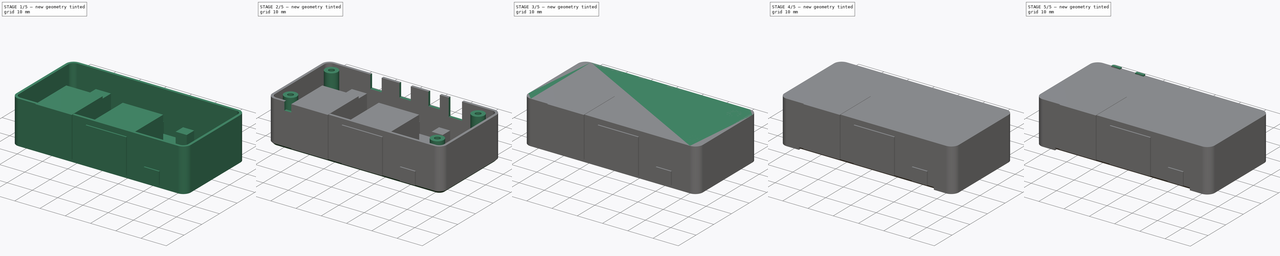
[diagram: build sequence overview — one tinted view per stage of 5, left to right]
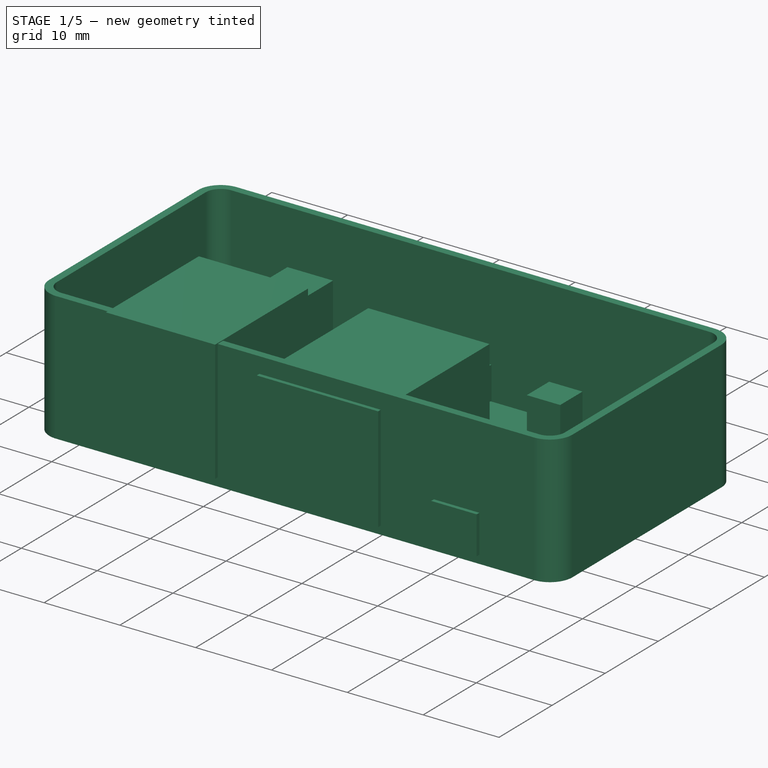
[diagram: stage 1 of 5 — iso view after this stage's code; geometry added in this stage tinted green]
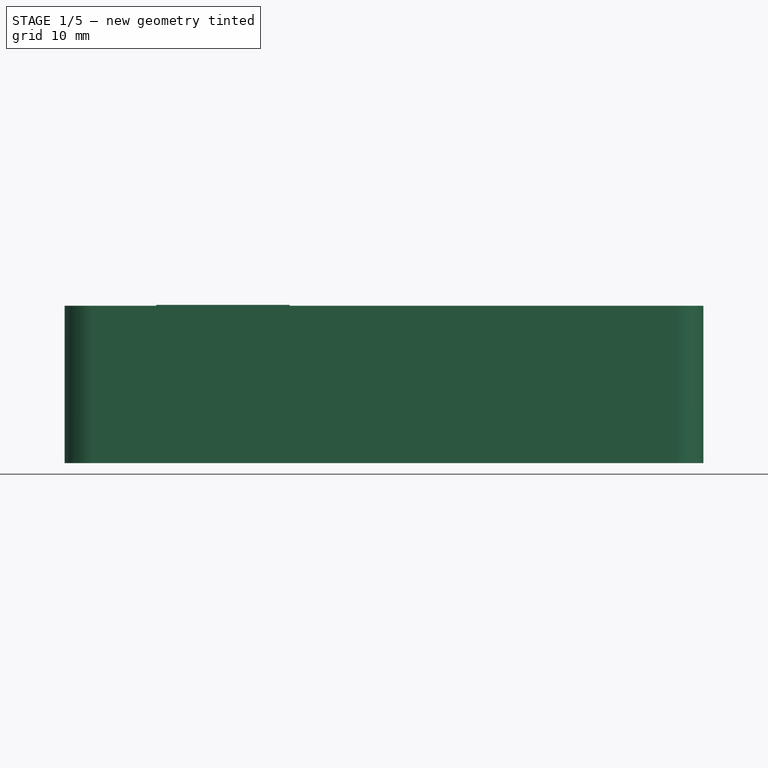
[diagram: stage 1 of 5 — front view after this stage's code; geometry added in this stage tinted green]
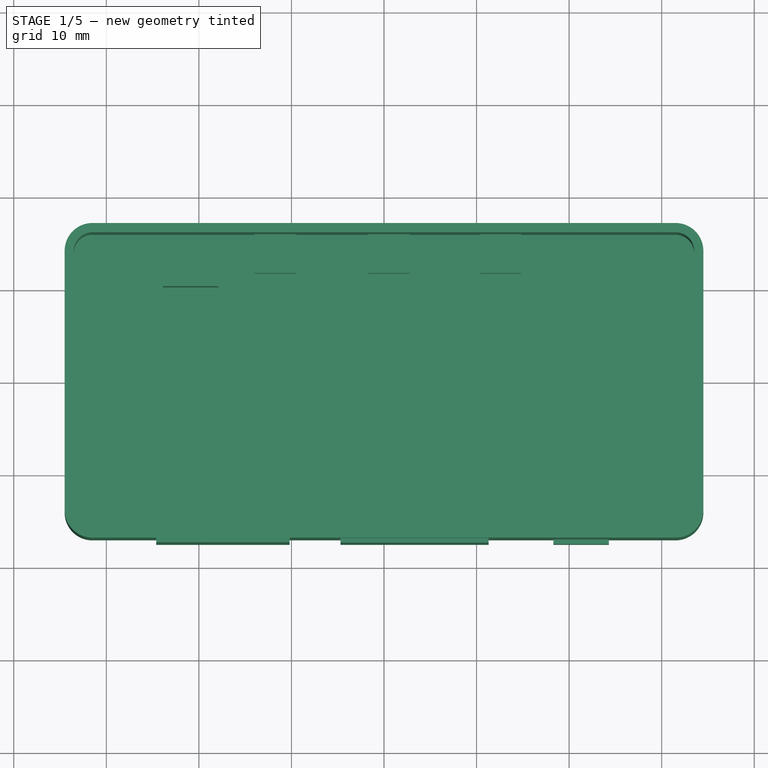
[diagram: stage 1 of 5 — top view after this stage's code; geometry added in this stage tinted green]
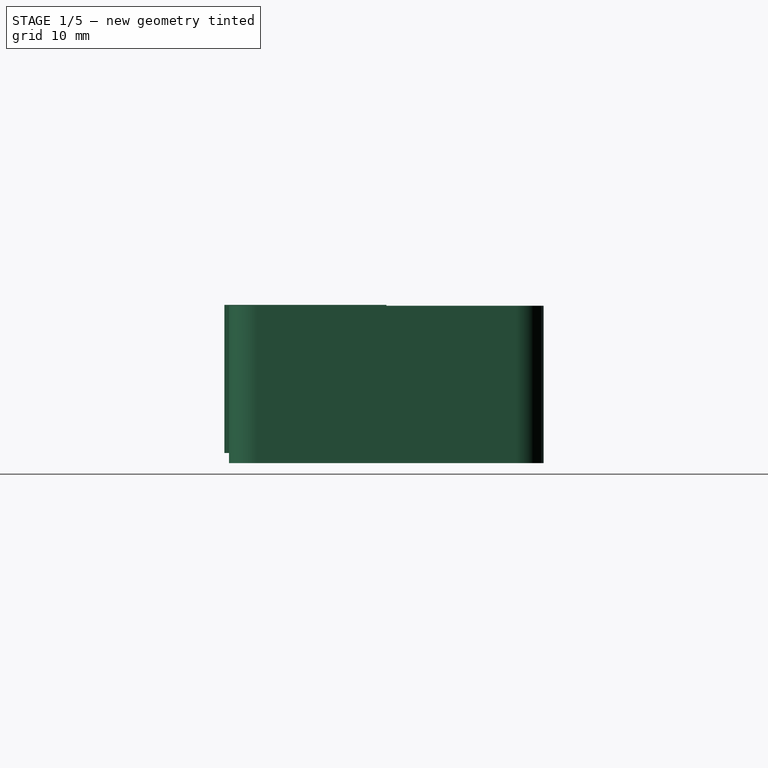
[diagram: stage 1 of 5 — right view after this stage's code; geometry added in this stage tinted green]
FCSTD DOCUMENT  (FreeCAD 1.0R39109 (Git))
Label: OrangePi
License: All rights reserved
LicenseURL: http://en.wikipedia.org/wiki/All_rights_reserved
objects: Sketcher::SketchObject×31, PartDesign::Pad×14, PartDesign::Pocket×13, PartDesign::Body×5, PartDesign::Thickness×4, PartDesign::Chamfer×4, PartDesign::Fillet×3
note: 181 computed .brp shape members not serialized (recipe doc carries the construction recipe); baked Part::Feature solids carry a one-line shape summary decoded from their .brp

FEATURE [PartDesign::Body] Body002  label="Top"
  AllowCompound = false
  Group = -> [Sketch019,Pad009,Thickness002,Sketch020,Pocket005,Sketch021,Pocket006,Sketch022,Pocket007,Sketch023,Pocket008]
  Origin = -> Origin002
  Placement = pos=(0,0,14.5) rot=(0,0,1;0rad)
  Tip = -> Pocket008
FEATURE [Sketcher::SketchObject] Sketch024
  ArcFitTolerance = 1e-06
  AttachmentSupport = -> [XY_Plane003]
  FullyConstrained = false
  MakeInternals = false
  MapMode = 5
  expr: Constraints[20] = 30 / 2
  expr: Constraints[21] = 65 / 2
  sketch-geometry (44):
    g0: LineSegment [constr] StartX=0 StartY=15 StartZ=0 EndX=-31.5 EndY=15 EndZ=0
    g1: LineSegment [constr] StartX=-32.5 StartY=14 StartZ=0 EndX=-32.5 EndY=0 EndZ=0
    g2: ArcOfCircle [constr] CenterX=-31.5 CenterY=14 CenterZ=0 NormalX=0 NormalY=0 NormalZ=1 AngleXU=0 Radius=1 StartAngle=1.5708 EndAngle=3.14159
    g3: GeomPoint [constr] X=-32.5 Y=15 Z=0
    g4: LineSegment StartX=0 StartY=17 StartZ=0 EndX=-31.5 EndY=17 EndZ=0
    g5: LineSegment StartX=-34.5 StartY=14 StartZ=0 EndX=-34.5 EndY=0 EndZ=0
    g6: ArcOfCircle CenterX=-31.5 CenterY=14 CenterZ=0 NormalX=0 NormalY=0 NormalZ=1 AngleXU=0 Radius=3 StartAngle=1.5708 EndAngle=3.14159
    g7: GeomPoint [constr] X=-34.5 Y=17 Z=0
    g8: Circle [constr] CenterX=-29 CenterY=11.5 CenterZ=0 NormalX=0 NormalY=0 NormalZ=1 AngleXU=0 Radius=1.5
    g9: LineSegment [constr] StartX=-29 StartY=10 StartZ=0 EndX=-29 EndY=0 EndZ=0
    g10: LineSegment [constr] StartX=-30.5 StartY=11.5 StartZ=0 EndX=-32.5 EndY=11.5 EndZ=0
    g11: LineSegment [constr] StartX=0 StartY=15 StartZ=0 EndX=31.5 EndY=15 EndZ=0
    g12: LineSegment [constr] StartX=32.5 StartY=14 StartZ=0 EndX=32.5 EndY=0 EndZ=0
    g13: ArcOfCircle [constr] CenterX=31.5 CenterY=14 CenterZ=0 NormalX=0 NormalY=0 NormalZ=1 AngleXU=0 Radius=1 StartAngle=0 EndAngle=1.5708
    g14: GeomPoint [constr] X=32.5 Y=15 Z=0
    g15: LineSegment StartX=0 StartY=17 StartZ=0 EndX=31.5 EndY=17 EndZ=0
    g16: LineSegment StartX=34.5 StartY=14 StartZ=0 EndX=34.5 EndY=0 EndZ=0
    g17: ArcOfCircle CenterX=31.5 CenterY=14 CenterZ=0 NormalX=0 NormalY=0 NormalZ=1 AngleXU=0 Radius=3 StartAngle=0 EndAngle=1.5708
    g18: GeomPoint [constr] X=34.5 Y=17 Z=0
    g19: Circle [constr] CenterX=29 CenterY=11.5 CenterZ=0 NormalX=0 NormalY=0 NormalZ=1 AngleXU=0 Radius=1.5
    g20: LineSegment [constr] StartX=29 StartY=10 StartZ=0 EndX=29 EndY=0 EndZ=0
    g21: LineSegment [constr] StartX=30.5 StartY=11.5 StartZ=0 EndX=32.5 EndY=11.5 EndZ=0
    g22: LineSegment [constr] StartX=0 StartY=-15 StartZ=0 EndX=-31.5 EndY=-15 EndZ=0
    g23: LineSegment [constr] StartX=-32.5 StartY=-14 StartZ=0 EndX=-32.5 EndY=0 EndZ=0
    g24: ArcOfCircle [constr] CenterX=-31.5 CenterY=-14 CenterZ=0 NormalX=0 NormalY=0 NormalZ=1 AngleXU=0 Radius=1 StartAngle=3.14159 EndAngle=4.71239
    g25: GeomPoint [constr] X=-32.5 Y=-15 Z=0
    g26: LineSegment StartX=0 StartY=-17 StartZ=0 EndX=-31.5 EndY=-17 EndZ=0
    g27: LineSegment StartX=-34.5 StartY=-14 StartZ=0 EndX=-34.5 EndY=0 EndZ=0
    g28: ArcOfCircle CenterX=-31.5 CenterY=-14 CenterZ=0 NormalX=0 NormalY=0 NormalZ=1 AngleXU=0 Radius=3 StartAngle=3.14159 EndAngle=4.71239
    g29: GeomPoint [constr] X=-34.5 Y=-17 Z=0
    g30: Circle [constr] CenterX=-29 CenterY=-11.5 CenterZ=0 NormalX=0 NormalY=0 NormalZ=1 AngleXU=0 Radius=1.5
    g31: LineSegment [constr] StartX=-29 StartY=-10 StartZ=0 EndX=-29 EndY=0 EndZ=0
    g32: LineSegment [constr] StartX=-30.5 StartY=-11.5 StartZ=0 EndX=-32.5 EndY=-11.5 EndZ=0
    g33: LineSegment [constr] StartX=0 StartY=-15 StartZ=0 EndX=31.5 EndY=-15 EndZ=0
    g34: LineSegment [constr] StartX=32.5 StartY=-14 StartZ=0 EndX=32.5 EndY=0 EndZ=0
    g35: ArcOfCircle [constr] CenterX=31.5 CenterY=-14 CenterZ=0 NormalX=0 NormalY=0 NormalZ=1 AngleXU=0 Radius=1 StartAngle=4.71239 EndAngle=6.28319
    g36: GeomPoint [constr] X=32.5 Y=-15 Z=0
    g37: LineSegment StartX=0 StartY=-17 StartZ=0 EndX=31.5 EndY=-17 EndZ=0
    g38: LineSegment StartX=34.5 StartY=-14 StartZ=0 EndX=34.5 EndY=0 EndZ=0
    g39: ArcOfCircle CenterX=31.5 CenterY=-14 CenterZ=0 NormalX=0 NormalY=0 NormalZ=1 AngleXU=0 Radius=3 StartAngle=4.71239 EndAngle=6.28319
    g40: GeomPoint [constr] X=34.5 Y=-17 Z=0
    g41: Circle [constr] CenterX=29 CenterY=-11.5 CenterZ=0 NormalX=0 NormalY=0 NormalZ=1 AngleXU=0 Radius=1.5
    g42: LineSegment [constr] StartX=29 StartY=-10 StartZ=0 EndX=29 EndY=0 EndZ=0
    g43: LineSegment [constr] StartX=30.5 StartY=-11.5 StartZ=0 EndX=32.5 EndY=-11.5 EndZ=0
  constraints (91):
    c: PointOnObject(g0,g-2)
    c: Horizontal(g0)
    c: PointOnObject(g1,g-1)
    c: Vertical(g1)
    c: PointOnObject(g3,g0)
    c: PointOnObject(g3,g1)
    c: Tangent(g0,g2) = -1.5708
    c: Tangent(g1,g2) = -1.5708
    c: Radius(g2) = 1
    c: PointOnObject(g4,g-2)
    c: Horizontal(g4)
    c: PointOnObject(g5,g-1)
    c: Vertical(g5)
    c: PointOnObject(g7,g4)
    c: PointOnObject(g7,g5)
    c: Tangent(g4,g6) = -1.5708
    c: Tangent(g5,g6) = -1.5708
    c: Radius(g6) = 3
    c: DistanceY(g0,g4) = 2
    c: DistanceX(g5,g1) = 2
    c: DistanceY(g1,g0) = 15
    c: DistanceX(g1,g0) = 32.5
    c: DistanceY(g8,g0) = 3.5
    c: DistanceX(g1,g8) = 3.5
    c: Radius(g8) = 1.5
    c: PointOnObject(g9,g-1)
    c: Vertical(g9)
    c: PointOnObject(g9,g8)
    c: PointOnObject(g10,g1)
    c: Horizontal(g10)
    c: PointOnObject(g10,g8)
    c: Horizontal(g11)
    c: Vertical(g12)
    c: PointOnObject(g14,g11)
    c: PointOnObject(g14,g12)
    c: Tangent(g11,g13) = 1.5708
    c: Tangent(g12,g13) = 1.5708
    c: Radius(g13) = 1
    c: Horizontal(g15)
    c: Vertical(g16)
    c: PointOnObject(g18,g15)
    c: PointOnObject(g18,g16)
    c: Tangent(g15,g17) = 1.5708
    c: Tangent(g16,g17) = 1.5708
    c: Radius(g17) = 3
    c: Radius(g19) = 1.5
    c: Vertical(g20)
    c: PointOnObject(g20,g19)
    c: PointOnObject(g21,g12)
    c: Horizontal(g21)
    c: PointOnObject(g21,g19)
    c: Horizontal(g22)
    c: Vertical(g23)
    c: PointOnObject(g25,g22)
    c: PointOnObject(g25,g23)
    c: Tangent(g22,g24) = 1.5708
    c: Tangent(g23,g24) = 1.5708
    c: Radius(g24) = 1
    c: Horizontal(g26)
    c: Vertical(g27)
    c: PointOnObject(g29,g26)
    c: PointOnObject(g29,g27)
    c: Tangent(g26,g28) = 1.5708
    c: Tangent(g27,g28) = 1.5708
    c: Radius(g28) = 3
    c: Radius(g30) = 1.5
    c: Vertical(g31)
    c: PointOnObject(g31,g30)
    c: PointOnObject(g32,g23)
    c: Horizontal(g32)
    c: PointOnObject(g32,g30)
    c: Horizontal(g33)
    c: Vertical(g34)
    c: PointOnObject(g36,g33)
    c: PointOnObject(g36,g34)
    c: Tangent(g33,g35) = -1.5708
    c: Tangent(g34,g35) = -1.5708
    c: Radius(g35) = 1
    c: Horizontal(g37)
    c: Vertical(g38)
    c: PointOnObject(g40,g37)
    c: PointOnObject(g40,g38)
    c: Tangent(g37,g39) = -1.5708
    c: Tangent(g38,g39) = -1.5708
    c: Radius(g39) = 3
    c: Radius(g41) = 1.5
    c: Vertical(g42)
    c: PointOnObject(g42,g41)
    c: PointOnObject(g43,g34)
    c: Horizontal(g43)
    c: PointOnObject(g43,g41)
FEATURE [PartDesign::Pad] Pad010
  Direction = (0,0,1)
  Length = 17
  Length2 = 10
  Profile = -> Sketch024
  ReferenceAxis = -> Sketch024 [N_Axis]
  Suppressed = false
  Type = 0
FEATURE [Sketcher::SketchObject] Sketch030
  ArcFitTolerance = 1e-06
  FullyConstrained = true
  MakeInternals = false
  MapMode = 5
  Placement = pos=(0,0,0) rot=(1,0,0;3.14159rad)
  sketch-geometry (4):
    g0: Circle CenterX=-29.1 CenterY=11.5 CenterZ=0 NormalX=0 NormalY=0 NormalZ=1 AngleXU=0 Radius=2
    g1: Circle CenterX=29 CenterY=11.5 CenterZ=0 NormalX=0 NormalY=0 NormalZ=1 AngleXU=0 Radius=2
    g2: Circle CenterX=29 CenterY=-11.5 CenterZ=0 NormalX=0 NormalY=0 NormalZ=1 AngleXU=0 Radius=2
    g3: Circle CenterX=-29 CenterY=-11.5 CenterZ=0 NormalX=0 NormalY=0 NormalZ=1 AngleXU=0 Radius=2
  constraints (8):
    c: Diameter(g0) = 4
    c: Coincident(g0,g-3)
    c: Coincident(g1,g-6)
    c: Coincident(g2,g-5)
    c: Coincident(g3,g-4)
    c: Equal(g3,g2)
    c: Equal(g2,g1)
    c: Equal(g1,g0)
FEATURE [PartDesign::Thickness] Thickness003
  Base = -> Pad010 [Face14]
  BaseFeature = -> Pad010
  Intersection = false
  Join = 1
  Mode = 0
  Reversed = true
  SupportTransform = false
  Suppressed = false
  Value = 1
FEATURE [PartDesign::Body] Body003
  AllowCompound = false
  Group = -> [Sketch024,Pad010,Thickness003,Sketch029,Pad012,Sketch030,Pocket011,Sketch033,Pocket013,Sketch035,Pocket015,Chamfer002,Chamfer003,Sketch036,Sketch037,Sketch038,Pocket016,Sketch039,Fillet002]
  Origin = -> Origin003
  Placement = pos=(0,0,31.5) rot=(1,0,0;3.14159rad)
  Tip = -> Fillet002
FEATURE [Sketcher::SketchObject] Sketch040
  ArcFitTolerance = 1e-06
  AttachmentSupport = -> [XY_Plane004]
  FullyConstrained = true
  MakeInternals = false
  MapMode = 5
  sketch-geometry (8):
    g0: LineSegment StartX=-32.5 StartY=15 StartZ=0 EndX=-32.5 EndY=-15 EndZ=0
    g1: LineSegment StartX=-32.5 StartY=-15 StartZ=0 EndX=32.5 EndY=-15 EndZ=0
    g2: LineSegment StartX=32.5 StartY=-15 StartZ=0 EndX=32.5 EndY=15 EndZ=0
    g3: LineSegment StartX=32.5 StartY=15 StartZ=0 EndX=-32.5 EndY=15 EndZ=0
    g4: Circle CenterX=-29 CenterY=11.5 CenterZ=0 NormalX=0 NormalY=0 NormalZ=1 AngleXU=0 Radius=1.45
    g5: Circle CenterX=29 CenterY=11.5 CenterZ=0 NormalX=0 NormalY=0 NormalZ=1 AngleXU=0 Radius=1.45
    g6: Circle CenterX=29 CenterY=-11.5 CenterZ=0 NormalX=0 NormalY=0 NormalZ=1 AngleXU=0 Radius=1.45
    g7: Circle CenterX=-29 CenterY=-11.5 CenterZ=0 NormalX=0 NormalY=0 NormalZ=1 AngleXU=0 Radius=1.45
  constraints (23):
    c: Coincident(g0,g1)
    c: Coincident(g1,g2)
    c: Coincident(g2,g3)
    c: Coincident(g3,g0)
    c: Vertical(g0)
    c: Vertical(g2)
    c: Horizontal(g1)
    c: Horizontal(g3)
    c: Symmetric(g0,g1,g-1)
    c: Distance(g0) = 30
    c: Distance(g3) = 65
    c: Diameter(g4) = 2.9
    c: Equal(g4,g5)
    c: Equal(g5,g6)
    c: Equal(g6,g7)
    c: Vertical(g4,g7)
    c: Vertical(g5,g6)
    c: Horizontal(g6,g7)
    c: Horizontal(g5,g4)
    c: DistanceY(g4,g0) = 3.5
    c: DistanceY(g0,g7) = 3.5
    c: DistanceX(g0,g7) = 3.5
    c: DistanceX(g5,g2) = 3.5
FEATURE [PartDesign::Pad] Pad013
  Direction = (0,0,1)
  Length = 1.1
  Length2 = 10
  Profile = -> Sketch040
  ReferenceAxis = -> Sketch040 [N_Axis]
  Suppressed = false
  Type = 0
FEATURE [Sketcher::SketchObject] Sketch041
  ArcFitTolerance = 1e-06
  AttachmentSupport = -> [Pad013]
  ExternalGeometry = -> [Pad013]
  FullyConstrained = false
  MakeInternals = false
  MapMode = 5
  Placement = pos=(0,0,1.1) rot=(0,0,1;0rad)
  sketch-geometry (15):
    g0: LineSegment StartX=-32.5 StartY=-13.0378 StartZ=0 EndX=-24.6 EndY=-13.0378 EndZ=0
    g1: LineSegment StartX=-24.6 StartY=-13.0378 StartZ=0 EndX=-10.2 EndY=-13.0378 EndZ=0
    g2: LineSegment StartX=-10.2 StartY=-13.0378 StartZ=0 EndX=-4.7 EndY=-13.0378 EndZ=0
    g3: LineSegment StartX=-4.7 StartY=-13.0378 StartZ=0 EndX=11.3 EndY=-13.0378 EndZ=0
    g4: LineSegment StartX=11.3 StartY=-13.0378 StartZ=0 EndX=18.3 EndY=-13.0378 EndZ=0
    g5: LineSegment StartX=18.3 StartY=-13.0378 StartZ=0 EndX=24.3 EndY=-13.0378 EndZ=0
    g6: LineSegment [constr] StartX=32.5 StartY=15 StartZ=0 EndX=14.8 EndY=15 EndZ=0
    g7: LineSegment StartX=14.8 StartY=15 StartZ=0 EndX=10.4 EndY=15 EndZ=0
    g8: LineSegment [constr] StartX=10.4 StartY=15 StartZ=0 EndX=0 EndY=15 EndZ=0
    g9: LineSegment [constr] StartX=10.4 StartY=15 StartZ=0 EndX=2.8 EndY=15 EndZ=0
    g10: LineSegment StartX=2.8 StartY=15 StartZ=0 EndX=-1.7 EndY=15 EndZ=0
    g11: LineSegment [constr] StartX=-1.7 StartY=15 StartZ=0 EndX=-9.5 EndY=15 EndZ=0
    g12: LineSegment StartX=-9.5 StartY=15 StartZ=0 EndX=-14 EndY=15 EndZ=0
    g13: LineSegment [constr] StartX=-32.5 StartY=15 StartZ=0 EndX=-23.9 EndY=15 EndZ=0
    g14: LineSegment StartX=-23.9 StartY=15 StartZ=0 EndX=-17.9 EndY=15 EndZ=0
  constraints (13):
    c: Distance(g0) = 7.9
    c: Horizontal(g0)
    c: PointOnObject(g0,g-3)
    c: Distance(g6) = 17.7
    c: Distance(g7) = 4.4
    c: Coincident(g7,g6)
    c: Coincident(g8,g7)
    c: Distance(g9) = 7.6
    c: Coincident(g9,g7)
    c: PointOnObject(g9,g8)
    c: Distance(g10) = 4.5
    c: Horizontal(g10)
    c: Coincident(g10,g9)
FEATURE [Sketcher::SketchObject] Sketch042
  ArcFitTolerance = 1e-06
  AttachmentSupport = -> [Pad013]
  ExternalGeometry = -> [Sketch041,Pad013]
  FullyConstrained = false
  MakeInternals = false
  MapMode = 5
  Placement = pos=(0,0,1.1) rot=(0,0,1;0rad)
  sketch-geometry (4):
    g0: LineSegment StartX=-24.6 StartY=-17.5 StartZ=0 EndX=-10.2 EndY=-17.5 EndZ=0
    g1: LineSegment StartX=-10.2 StartY=-17.5 StartZ=0 EndX=-10.2 EndY=0 EndZ=0
    g2: LineSegment StartX=-24.6 StartY=-17.5 StartZ=0 EndX=-24.6 EndY=0 EndZ=0
    g3: LineSegment StartX=-10.2 StartY=0 StartZ=0 EndX=-24.6 EndY=0 EndZ=0
  constraints (3):
    c: Distance(g0) = 14.4
    c: Horizontal(g0)
    c: Coincident(g3,g2)
FEATURE [PartDesign::Pad] Pad014
  BaseFeature = -> Pad013
  Direction = (0,0,1)
  Length = 16
  Length2 = 10
  Profile = -> Sketch042
  ReferenceAxis = -> Sketch042 [N_Axis]
  Suppressed = false
  Type = 0
FEATURE [Sketcher::SketchObject] Sketch043
  ArcFitTolerance = 1e-06
  AttachmentSupport = -> [Pad014]
  ExternalGeometry = -> [Sketch041,Pad014]
  FullyConstrained = false
  MakeInternals = false
  MapMode = 5
  Placement = pos=(0,0,1.1) rot=(0,0,1;0rad)
  sketch-geometry (4):
    g0: LineSegment StartX=-4.7 StartY=-17.5 StartZ=0 EndX=11.3 EndY=-17.5 EndZ=0
    g1: LineSegment StartX=11.3 StartY=-17.5 StartZ=0 EndX=11.3 EndY=3.5 EndZ=0
    g2: LineSegment StartX=11.3 StartY=3.5 StartZ=0 EndX=-4.7 EndY=3.5 EndZ=0
    g3: LineSegment StartX=-4.7 StartY=-17.5 StartZ=0 EndX=-4.7 EndY=3.5 EndZ=0
  constraints (3):
    c: Horizontal(g2)
    c: Coincident(g2,g1)
    c: Coincident(g2,g3)
FEATURE [PartDesign::Pad] Pad015
  BaseFeature = -> Pad014
  Direction = (0,0,1)
  Length = 13.8
  Length2 = 10
  Profile = -> Sketch043
  ReferenceAxis = -> Sketch043 [N_Axis]
  Suppressed = false
  Type = 0
FEATURE [Sketcher::SketchObject] Sketch044
  ArcFitTolerance = 1e-06
  AttachmentSupport = -> [Pad015]
  ExternalGeometry = -> [Sketch041,Pad015]
  FullyConstrained = false
  MakeInternals = false
  MapMode = 5
  Placement = pos=(0,0,1.1) rot=(0,0,1;0rad)
  sketch-geometry (4):
    g0: LineSegment StartX=18.3 StartY=-17.5 StartZ=0 EndX=24.3 EndY=-17.5 EndZ=0
    g1: LineSegment StartX=24.3 StartY=-17.5 StartZ=0 EndX=24.3 EndY=-3.6 EndZ=0
    g2: LineSegment StartX=18.3 StartY=-17.5 StartZ=0 EndX=18.3 EndY=-3.6 EndZ=0
    g3: LineSegment StartX=24.3 StartY=-3.6 StartZ=0 EndX=18.3 EndY=-3.6 EndZ=0
  constraints (3):
    c: Vertical(g2)
    c: Coincident(g2,g0)
    c: Coincident(g3,g2)
FEATURE [PartDesign::Pad] Pad016
  BaseFeature = -> Pad015
  Direction = (0,0,1)
  Length = 5
  Length2 = 10
  Profile = -> Sketch044
  ReferenceAxis = -> Sketch044 [N_Axis]
  Suppressed = false
  Type = 0
FEATURE [Sketcher::SketchObject] Sketch045
  ArcFitTolerance = 1e-06
  AttachmentSupport = -> [Pad016]
  ExternalGeometry = -> [Sketch041]
  FullyConstrained = false
  MakeInternals = false
  MapMode = 5
  Placement = pos=(0,0,1.1) rot=(0,0,1;0rad)
  sketch-geometry (12):
    g0: LineSegment StartX=14.8 StartY=16.7 StartZ=0 EndX=10.4 EndY=16.7 EndZ=0
    g1: LineSegment StartX=14.8 StartY=16.7 StartZ=0 EndX=14.8 EndY=11.8 EndZ=0
    g2: LineSegment StartX=14.8 StartY=11.8 StartZ=0 EndX=10.4 EndY=11.8 EndZ=0
    g3: LineSegment StartX=2.8 StartY=16.7 StartZ=0 EndX=-1.7 EndY=16.7 EndZ=0
    g4: LineSegment StartX=-9.5 StartY=16.7 StartZ=0 EndX=-14 EndY=16.7 EndZ=0
    g5: LineSegment StartX=10.4 StartY=16.7 StartZ=0 EndX=10.4 EndY=11.8 EndZ=0
    g6: LineSegment StartX=2.8 StartY=16.7 StartZ=0 EndX=2.8 EndY=11.8 EndZ=0
    g7: LineSegment StartX=-1.7 StartY=16.7 StartZ=0 EndX=-1.7 EndY=11.8 EndZ=0
    g8: LineSegment StartX=-9.5 StartY=16.7 StartZ=0 EndX=-9.5 EndY=11.8 EndZ=0
    g9: LineSegment StartX=-14 StartY=16.7 StartZ=0 EndX=-14 EndY=11.8 EndZ=0
    g10: LineSegment StartX=-9.5 StartY=11.8 StartZ=0 EndX=-14 EndY=11.8 EndZ=0
    g11: LineSegment StartX=2.8 StartY=11.8 StartZ=0 EndX=-1.7 EndY=11.8 EndZ=0
  constraints (8):
    c: Horizontal(g0)
    c: PointOnObject(g6,g11)
    c: PointOnObject(g8,g10)
    c: Coincident(g10,g9)
    c: Coincident(g11,g7)
    c: PointOnObject(g10,g8)
    c: Coincident(g2,g5)
    c: PointOnObject(g11,g6)
FEATURE [PartDesign::Pad] Pad017
  BaseFeature = -> Pad016
  Direction = (0,0,1)
  Length = 4.3
  Length2 = 10
  Profile = -> Sketch045
  ReferenceAxis = -> Sketch045 [N_Axis]
  Suppressed = false
  Type = 0
FEATURE [Sketcher::SketchObject] Sketch046
  ArcFitTolerance = 1e-06
  AttachmentSupport = -> [Pad017]
  ExternalGeometry = -> [Sketch041]
  FullyConstrained = false
  MakeInternals = false
  MapMode = 5
  Placement = pos=(0,0,1.1) rot=(0,0,1;0rad)
  sketch-geometry (4):
    g0: LineSegment StartX=-17.9 StartY=15.7 StartZ=0 EndX=-23.9 EndY=15.7 EndZ=0
    g1: LineSegment StartX=-23.9 StartY=15.7 StartZ=0 EndX=-23.9 EndY=10.3 EndZ=0
    g2: LineSegment StartX=-17.9 StartY=15.7 StartZ=0 EndX=-17.9 EndY=10.3 EndZ=0
    g3: LineSegment StartX=-23.9 StartY=10.3 StartZ=0 EndX=-17.9 EndY=10.3 EndZ=0
  constraints (4):
    c: Distance(g1) = 5.4
    c: Vertical(g1)
    c: Coincident(g1,g0)
    c: Coincident(g2,g3)
FEATURE [PartDesign::Pad] Pad018
  BaseFeature = -> Pad017
  Direction = (0,0,1)
  Length = 8.9
  Length2 = 10
  Profile = -> Sketch046
  ReferenceAxis = -> Sketch046 [N_Axis]
  Suppressed = false
  Type = 0
FEATURE [PartDesign::Body] Body004  label="OrangePi"
  AllowCompound = false
  Group = -> [Sketch040,Pad013,Sketch041,Sketch042,Pad014,Sketch043,Pad015,Sketch044,Pad016,Sketch045,Pad017,Sketch046,Pad018]
  Origin = -> Origin004
  Placement = pos=(0,0,13.5) rot=(0,0,1;3.14159rad)
  Tip = -> Pad018
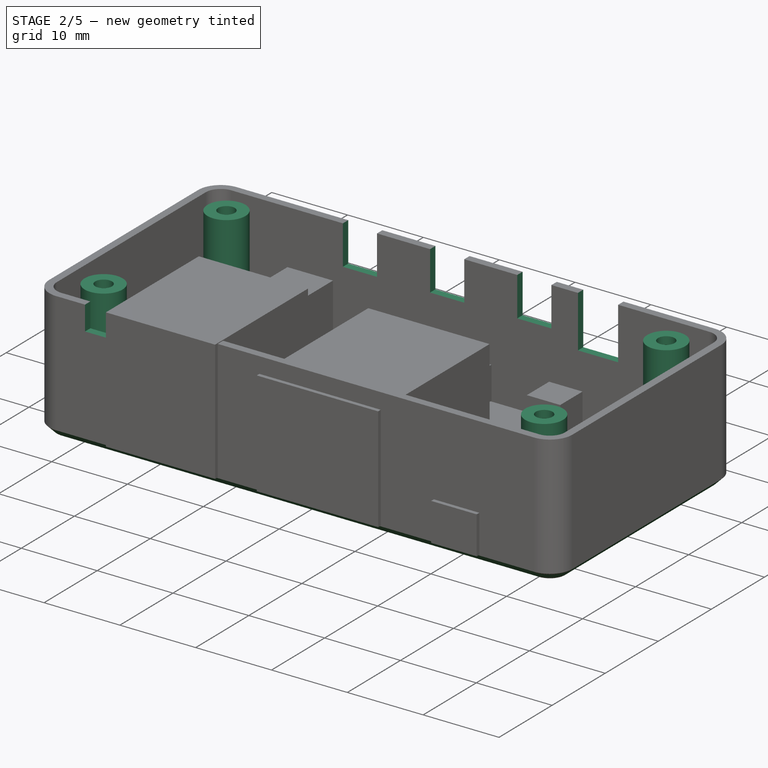
[diagram: stage 2 of 5 — iso view after this stage's code; geometry added in this stage tinted green]
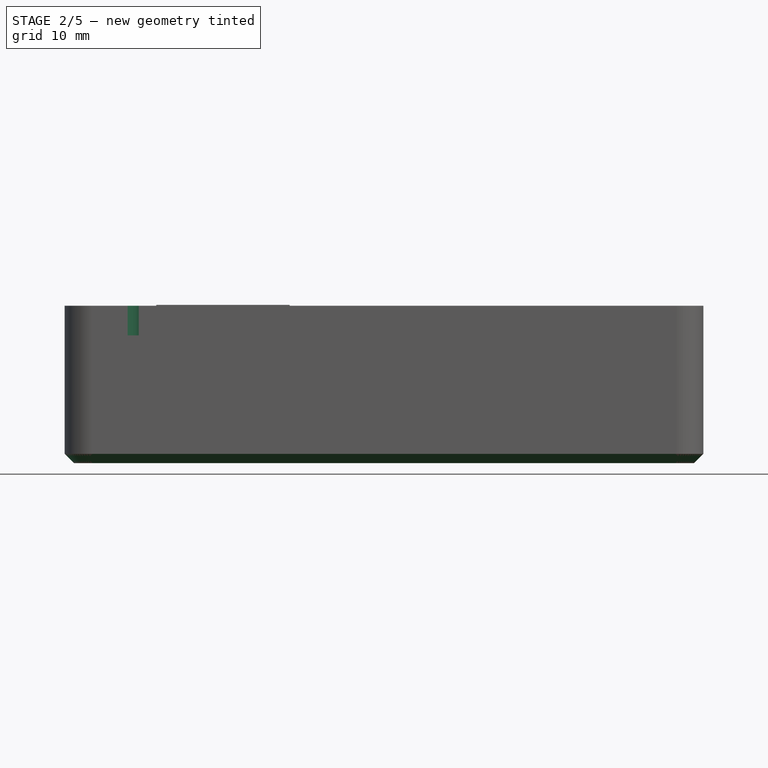
[diagram: stage 2 of 5 — front view after this stage's code; geometry added in this stage tinted green]
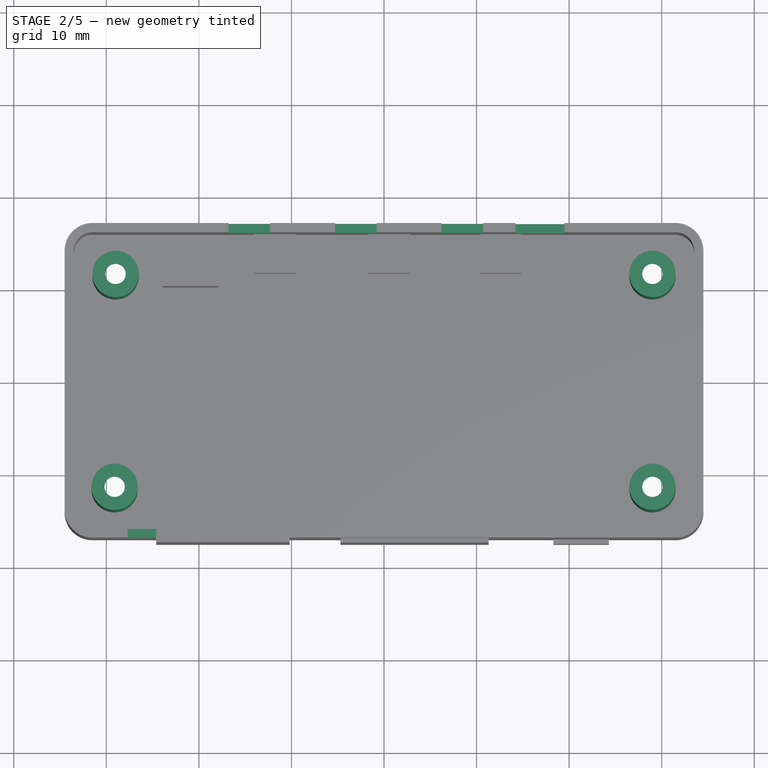
[diagram: stage 2 of 5 — top view after this stage's code; geometry added in this stage tinted green]
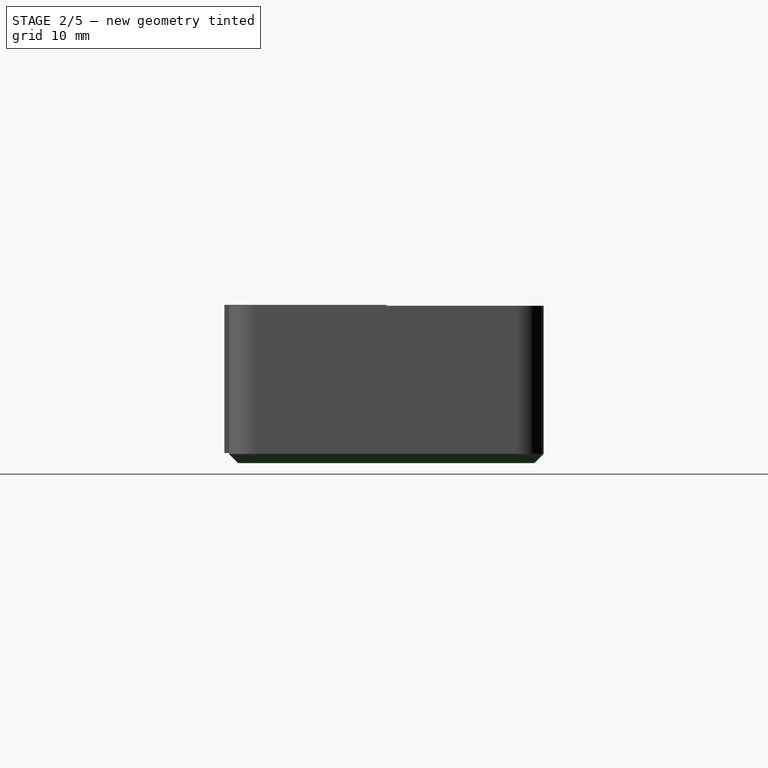
[diagram: stage 2 of 5 — right view after this stage's code; geometry added in this stage tinted green]
FEATURE [Sketcher::SketchObject] Sketch033
  ArcFitTolerance = 1e-06
  AttachmentOffset = pos=(0,0,-1) rot=(0,0,1;0rad)
  FullyConstrained = true
  MakeInternals = false
  MapMode = 5
  sketch-geometry (4):
    g0: Circle CenterX=-29 CenterY=11.5 CenterZ=0 NormalX=0 NormalY=0 NormalZ=1 AngleXU=0 Radius=2.5
    g1: Circle CenterX=-29.1 CenterY=-11.5 CenterZ=0 NormalX=0 NormalY=0 NormalZ=1 AngleXU=0 Radius=2.5
    g2: Circle CenterX=29 CenterY=-11.5 CenterZ=0 NormalX=0 NormalY=0 NormalZ=1 AngleXU=0 Radius=2.5
    g3: Circle CenterX=29 CenterY=11.5 CenterZ=0 NormalX=0 NormalY=0 NormalZ=1 AngleXU=0 Radius=2.5
  constraints (8):
    c: Coincident(g0,g-3)
    c: Radius(g0) = 2.5
    c: Coincident(g1,g-6)
    c: Coincident(g2,g-5)
    c: Coincident(g3,g-4)
    c: Equal(g3,g2)
    c: Equal(g2,g1)
    c: Equal(g1,g0)
FEATURE [PartDesign::Pad] Pad012
  BaseFeature = -> Thickness003
  Direction = (0,0,1)
  Length = 17
  Length2 = 10
  Profile = -> Sketch033
  ReferenceAxis = -> Sketch033 [N_Axis]
  Suppressed = false
  Type = 0
FEATURE [PartDesign::Pocket] Pocket011
  BaseFeature = -> Pad012
  Direction = (0,0,1)
  Length = 16
  Length2 = 5
  Profile = -> Sketch030
  ReferenceAxis = -> Sketch030 [N_Axis]
  Suppressed = false
  Type = 0
FEATURE [Sketcher::SketchObject] Sketch029
  ArcFitTolerance = 1e-06
  AttachmentSupport = -> [Pocket011]
  FullyConstrained = true
  MakeInternals = false
  MapMode = 5
  Placement = pos=(0,0,16) rot=(1,0,0;3.14159rad)
  sketch-geometry (4):
    g0: Circle CenterX=-29.1 CenterY=11.5 CenterZ=0 NormalX=0 NormalY=0 NormalZ=1 AngleXU=0 Radius=1.1
    g1: Circle CenterX=29 CenterY=11.5 CenterZ=0 NormalX=0 NormalY=0 NormalZ=1 AngleXU=0 Radius=1.1
    g2: Circle CenterX=29 CenterY=-11.5 CenterZ=0 NormalX=0 NormalY=0 NormalZ=1 AngleXU=0 Radius=1.1
    g3: Circle CenterX=-29 CenterY=-11.5 CenterZ=0 NormalX=0 NormalY=0 NormalZ=1 AngleXU=0 Radius=1.1
  constraints (8):
    c: Diameter(g0) = 2.2
    c: Coincident(g0,g-3)
    c: Coincident(g1,g-4)
    c: Coincident(g2,g-6)
    c: Coincident(g3,g-5)
    c: Equal(g0,g1)
    c: Equal(g1,g2)
    c: Equal(g2,g3)
FEATURE [PartDesign::Pocket] Pocket013
  BaseFeature = -> Pocket011
  Direction = (0,0,1)
  Length = 5
  Length2 = 5
  Profile = -> Sketch029
  ReferenceAxis = -> Sketch029 [N_Axis]
  Suppressed = false
  Type = 0
FEATURE [Sketcher::SketchObject] Sketch035
  ArcFitTolerance = 1e-06
  AttachmentSupport = -> [Pocket013]
  ExternalGeometry = -> [Pocket013]
  FullyConstrained = false
  MakeInternals = false
  MapMode = 5
  Placement = pos=(0,-17,0) rot=(1,0,0;1.5708rad)
  sketch-geometry (11):
    g0: ArcOfCircle CenterX=-21.0535 CenterY=14.0002 CenterZ=0 NormalX=0 NormalY=0 NormalZ=1 AngleXU=0 Radius=2.9959 StartAngle=3.20846 EndAngle=6.21632
    g1: LineSegment [constr] StartX=-18.0576 StartY=14 StartZ=0 EndX=-24.0494 EndY=14 EndZ=0
    g2: LineSegment [constr] StartX=-24.0494 StartY=14 StartZ=0 EndX=-27.5 EndY=14 EndZ=0
    g3: LineSegment [constr] StartX=-18.0576 StartY=14 StartZ=0 EndX=-14.75 EndY=14 EndZ=0
    g4: LineSegment [constr] StartX=-27.5 StartY=14 StartZ=0 EndX=-27.5 EndY=17 EndZ=0
    g5: LineSegment [constr] StartX=-14.75 StartY=14 StartZ=0 EndX=-14.75 EndY=17 EndZ=0
    g6: LineSegment StartX=-14.55 StartY=13.8 StartZ=0 EndX=-18.0643 EndY=13.8 EndZ=0
    g7: LineSegment StartX=-24.0427 StartY=13.8 StartZ=0 EndX=-27.7 EndY=13.8 EndZ=0
    g8: LineSegment StartX=-27.7 StartY=13.8 StartZ=0 EndX=-27.7 EndY=17 EndZ=0
    g9: LineSegment StartX=-14.55 StartY=13.8 StartZ=0 EndX=-14.55 EndY=17 EndZ=0
    g10: LineSegment StartX=-27.7 StartY=17 StartZ=0 EndX=-14.55 EndY=17 EndZ=0
  constraints (20):
    c: PointOnObject(g1,g-3)
    c: PointOnObject(g1,g-3)
    c: Coincident(g2,g1)
    c: Coincident(g2,g-3)
    c: Coincident(g3,g1)
    c: Coincident(g3,g-3)
    c: Coincident(g4,g2)
    c: PointOnObject(g4,g-4)
    c: Vertical(g4)
    c: Vertical(g5)
    c: Coincident(g5,g3)
    c: PointOnObject(g5,g-4)
    c: Coincident(g0,g6)
    c: Coincident(g0,g7)
    c: Vertical(g8)
    c: Coincident(g8,g7)
    c: Vertical(g9)
    c: Coincident(g9,g6)
    c: Coincident(g9,g10)
    c: PointOnObject(g8,g10)
FEATURE [PartDesign::Pocket] Pocket015
  BaseFeature = -> Pocket013
  Direction = (0,1,-2e-16)
  Length = 1
  Length2 = 5
  Profile = -> Sketch035
  ReferenceAxis = -> Sketch035 [N_Axis]
  Suppressed = false
  Type = 0
FEATURE [PartDesign::Chamfer] Chamfer002
  Angle = 45
  Base = -> Pocket015 [Edge18]
  BaseFeature = -> Pocket015
  ChamferType = 0
  FlipDirection = false
  Size = 1
  Size2 = 1
  SupportTransform = false
  Suppressed = false
  UseAllEdges = false
FEATURE [PartDesign::Chamfer] Chamfer003
  Angle = 45
  Base = -> Chamfer002 [Edge128,Edge130,Edge134,Edge132]
  BaseFeature = -> Chamfer002
  ChamferType = 0
  FlipDirection = false
  Size = 0.8
  Size2 = 1
  SupportTransform = false
  Suppressed = false
  UseAllEdges = false
FEATURE [Sketcher::SketchObject] Sketch036
  ArcFitTolerance = 1e-06
  AttachmentOffset = pos=(0,3,0) rot=(1,0,0;0rad)
  AttachmentSupport = -> [Chamfer003]
  ExternalGeometry = -> [Chamfer003]
  FullyConstrained = false
  MakeInternals = false
  MapMode = 5
  Placement = pos=(0,3,17) rot=(0,0,1;0rad)
  sketch-geometry (21):
    g0: LineSegment [constr] StartX=10.4 StartY=11.5 StartZ=0 EndX=2.8 EndY=11.5 EndZ=0
    g1: LineSegment [constr] StartX=-1.9 StartY=11.5 StartZ=0 EndX=-9.5 EndY=11.5 EndZ=0
    g2: LineSegment StartX=15.1 StartY=11.5 StartZ=0 EndX=15.1 EndY=14.5028 EndZ=0
    g3: LineSegment StartX=15.1 StartY=14.5028 StartZ=0 EndX=10.4 EndY=14.5028 EndZ=0
    g4: LineSegment StartX=10.4 StartY=14.5028 StartZ=0 EndX=10.4 EndY=11.5 EndZ=0
    g5: LineSegment StartX=2.8 StartY=11.5 StartZ=0 EndX=2.8 EndY=14.5028 EndZ=0
    g6: LineSegment StartX=2.8 StartY=14.5028 StartZ=0 EndX=-1.9 EndY=14.5028 EndZ=0
    g7: LineSegment StartX=-1.9 StartY=14.5028 StartZ=0 EndX=-1.9 EndY=11.5 EndZ=0
    g8: LineSegment StartX=-1.9 StartY=11.5 StartZ=0 EndX=2.8 EndY=11.5 EndZ=0
    g9: LineSegment StartX=-9.5 StartY=11.5 StartZ=0 EndX=-9.5 EndY=14.5028 EndZ=0
    g10: LineSegment StartX=-9.5 StartY=14.5028 StartZ=0 EndX=-14.2 EndY=14.5028 EndZ=0
    g11: LineSegment StartX=-14.2 StartY=14.5028 StartZ=0 EndX=-14.2 EndY=11.5 EndZ=0
    g12: LineSegment StartX=-14.2 StartY=11.5 StartZ=0 EndX=-9.5 EndY=11.5 EndZ=0
    g13: LineSegment StartX=-17.6 StartY=11.5 StartZ=0 EndX=-17.6 EndY=14.5 EndZ=0
    g14: LineSegment StartX=-17.6 StartY=14.5 StartZ=0 EndX=-23.6 EndY=14.5 EndZ=0
    g15: LineSegment StartX=-23.6 StartY=14.5 StartZ=0 EndX=-23.6 EndY=11.5 EndZ=0
    g16: LineSegment StartX=-23.6 StartY=11.5 StartZ=0 EndX=-17.6 EndY=11.5 EndZ=0
    g17: LineSegment [constr] StartX=-14.2 StartY=11.5 StartZ=0 EndX=-17.6 EndY=11.5 EndZ=0
    g18: LineSegment StartX=15.1 StartY=11.5 StartZ=0 EndX=10.4 EndY=11.5 EndZ=0
    g19: LineSegment [constr] StartX=27.9 StartY=8.5 StartZ=0 EndX=27.9 EndY=15.6411 EndZ=0
    g20: LineSegment [constr] StartX=29 StartY=8.5 StartZ=0 EndX=27.9 EndY=8.5 EndZ=0
  constraints (52):
    c: Distance(g0) = 7.6
    c: Horizontal(g0)
    c: Distance(g1) = 7.6
    c: Horizontal(g1)
    c: Radius(g-5) = 1.1
    c: Coincident(g2,g3)
    c: Coincident(g3,g4)
    c: Horizontal(g3)
    c: Vertical(g2)
    c: Vertical(g4)
    c: Coincident(g5,g6)
    c: Coincident(g6,g7)
    c: Coincident(g7,g8)
    c: Coincident(g8,g5)
    c: Vertical(g5)
    c: Vertical(g7)
    c: Horizontal(g6)
    c: Horizontal(g8)
    c: Coincident(g9,g10)
    c: Coincident(g10,g11)
    c: Coincident(g11,g12)
    c: Coincident(g12,g9)
    c: Vertical(g9)
    c: Vertical(g11)
    c: Horizontal(g10)
    c: Horizontal(g12)
    c: Coincident(g13,g14)
    c: Coincident(g14,g15)
    c: Coincident(g15,g16)
    c: Coincident(g16,g13)
    c: Vertical(g13)
    c: Vertical(g15)
    c: Horizontal(g14)
    c: Horizontal(g16)
    c: Coincident(g18,g2)
    c: Coincident(g18,g4)
    c: Horizontal(g18)
    c: Distance(g3) = 4.7
    c: Equal(g3,g6)
    c: Equal(g8,g10)
    c: Coincident(g4,g0)
    c: Coincident(g0,g5)
    c: Coincident(g1,g7)
    c: Coincident(g1,g9)
    c: Coincident(g17,g11)
    c: DistanceX(g2,g19) = 12.8
    c: Vertical(g19)
    c: Coincident(g20,g-4)
    c: PointOnObject(g20,g-4)
    c: Horizontal(g20)
    c: Coincident(g20,g19)
    c: Distance(g16) = 6
FEATURE [Sketcher::SketchObject] Sketch037
  ArcFitTolerance = 1e-06
  FullyConstrained = false
  MakeInternals = false
  MapMode = 5
  Placement = pos=(0,0,17) rot=(0,0,1;0rad)
  sketch-geometry (4):
    g0: LineSegment StartX=-41.7409 StartY=16.0455 StartZ=0 EndX=-41.7409 EndY=-19.8713 EndZ=0
    g1: LineSegment StartX=-41.7409 StartY=-19.8713 StartZ=0 EndX=38.8529 EndY=-19.8713 EndZ=0
    g2: LineSegment StartX=38.8529 StartY=-19.8713 StartZ=0 EndX=38.8529 EndY=16.0455 EndZ=0
    g3: LineSegment StartX=38.8529 StartY=16.0455 StartZ=0 EndX=-41.7409 EndY=16.0455 EndZ=0
  constraints (8):
    c: Coincident(g0,g1)
    c: Coincident(g1,g2)
    c: Coincident(g2,g3)
    c: Coincident(g3,g0)
    c: Vertical(g0)
    c: Vertical(g2)
    c: Horizontal(g1)
    c: Horizontal(g3)
FEATURE [Sketcher::SketchObject] Sketch038
  ArcFitTolerance = 1e-06
  AttachmentSupport = -> [Chamfer003]
  ExternalGeometry = -> [Chamfer003]
  FullyConstrained = false
  MakeInternals = false
  MapMode = 5
  Placement = pos=(0,17,0) rot=(0,0.707107,0.707107;3.14159rad)
  sketch-geometry (22):
    g0: LineSegment [constr] StartX=-34.5 StartY=10.1466 StartZ=0 EndX=-26.5 EndY=10.1466 EndZ=0
    g1: LineSegment [constr] StartX=-26.5 StartY=10.1466 StartZ=0 EndX=-19.5 EndY=10.1466 EndZ=0
    g2: LineSegment [constr] StartX=34.5 StartY=11.8229 StartZ=0 EndX=16.8 EndY=11.8229 EndZ=0
    g3: LineSegment [constr] StartX=12.3 StartY=11.8229 StartZ=0 EndX=5.3 EndY=11.8229 EndZ=0
    g4: LineSegment StartX=5.3 StartY=11.8229 StartZ=0 EndX=0.8 EndY=11.8229 EndZ=0
    g5: LineSegment [constr] StartX=0.8 StartY=11.8229 StartZ=0 EndX=-6.2 EndY=11.8229 EndZ=0
    g6: LineSegment StartX=-6.2 StartY=11.8229 StartZ=0 EndX=-10.7 EndY=11.8229 EndZ=0
    g7: LineSegment [constr] StartX=-10.7 StartY=11.8229 StartZ=0 EndX=-14.2 EndY=11.8229 EndZ=0
    g8: LineSegment StartX=16.8 StartY=11.8229 StartZ=0 EndX=16.8 EndY=17 EndZ=0
    g9: LineSegment StartX=12.3 StartY=11.8229 StartZ=0 EndX=12.3 EndY=17 EndZ=0
    g10: LineSegment StartX=5.3 StartY=11.8229 StartZ=0 EndX=5.3 EndY=17.0044 EndZ=0
    g11: LineSegment StartX=0.8 StartY=11.8229 StartZ=0 EndX=0.8 EndY=17.0044 EndZ=0
    g12: LineSegment StartX=-6.2 StartY=11.8229 StartZ=0 EndX=-6.2 EndY=17 EndZ=0
    g13: LineSegment StartX=-10.7 StartY=11.8229 StartZ=0 EndX=-10.7 EndY=17 EndZ=0
    g14: LineSegment StartX=-19.5 StartY=10.1466 StartZ=0 EndX=-19.5 EndY=17.0002 EndZ=0
    g15: LineSegment StartX=-14.2 StartY=10.1466 StartZ=0 EndX=-14.2 EndY=17.0002 EndZ=0
    g16: LineSegment StartX=-14.2 StartY=10.1466 StartZ=0 EndX=-19.5 EndY=10.1466 EndZ=0
    g17: LineSegment StartX=16.8 StartY=11.8229 StartZ=0 EndX=12.3 EndY=11.8229 EndZ=0
    g18: LineSegment StartX=-19.5 StartY=17.0002 StartZ=0 EndX=-14.2 EndY=17.0002 EndZ=0
    g19: LineSegment StartX=-10.7 StartY=17 StartZ=0 EndX=-6.2 EndY=17 EndZ=0
    g20: LineSegment StartX=0.8 StartY=17.0044 StartZ=0 EndX=5.3 EndY=17.0044 EndZ=0
    g21: LineSegment StartX=12.3 StartY=17 StartZ=0 EndX=16.8 EndY=17 EndZ=0
  constraints (20):
    c: Distance(g0) = 8
    c: Horizontal(g0)
    c: PointOnObject(g0,g-3)
    c: Vertical(g8)
    c: Vertical(g9)
    c: Coincident(g17,g8)
    c: Coincident(g17,g9)
    c: Horizontal(g17)
    c: Coincident(g18,g14)
    c: Coincident(g18,g15)
    c: Horizontal(g18)
    c: Coincident(g19,g13)
    c: Coincident(g19,g12)
    c: Horizontal(g19)
    c: Coincident(g20,g11)
    c: Coincident(g20,g10)
    c: Horizontal(g20)
    c: Coincident(g21,g9)
    c: Coincident(g21,g8)
    c: Horizontal(g21)
FEATURE [PartDesign::Pocket] Pocket016
  BaseFeature = -> Chamfer003
  Direction = (0,-1,2e-16)
  Length = 1
  Length2 = 5
  Profile = -> Sketch038
  ReferenceAxis = -> Sketch038 [N_Axis]
  Suppressed = false
  Type = 0
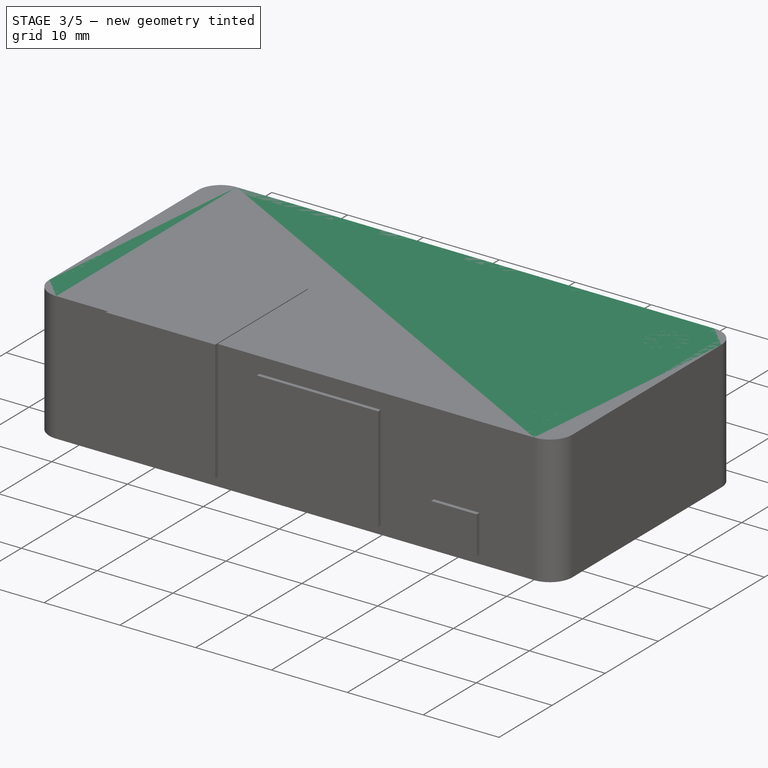
[diagram: stage 3 of 5 — iso view after this stage's code; geometry added in this stage tinted green]
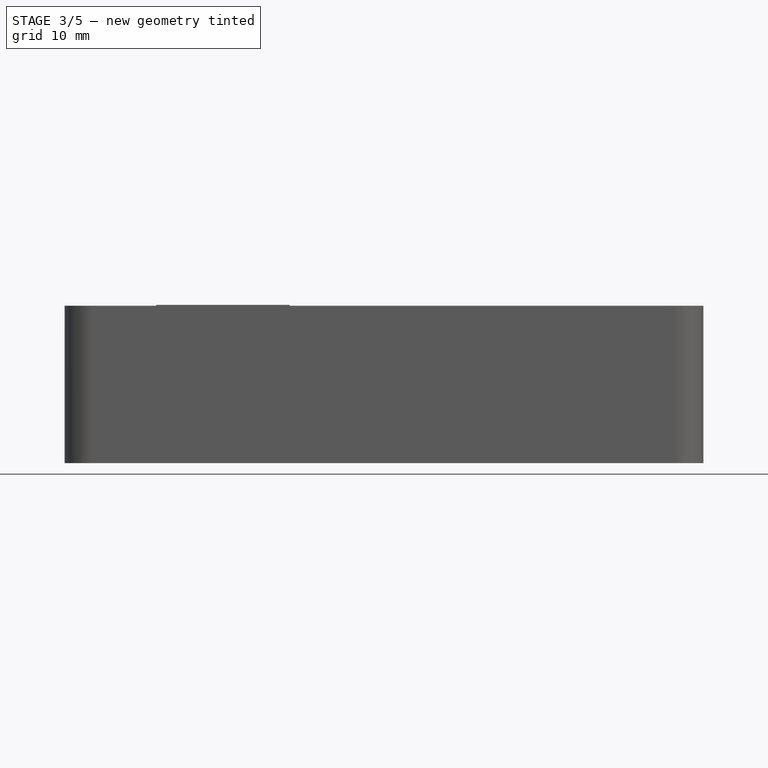
[diagram: stage 3 of 5 — front view after this stage's code; geometry added in this stage tinted green]
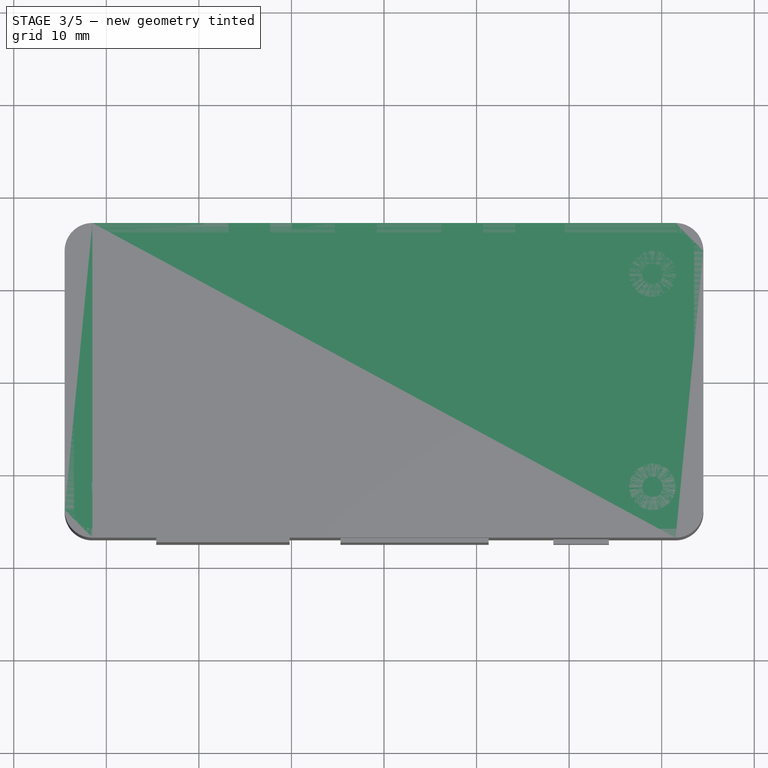
[diagram: stage 3 of 5 — top view after this stage's code; geometry added in this stage tinted green]
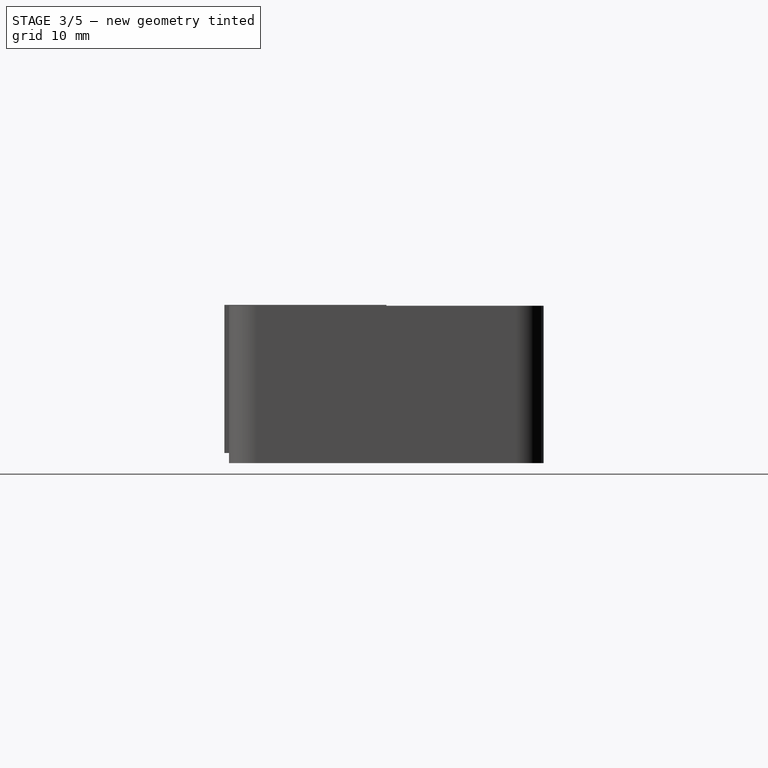
[diagram: stage 3 of 5 — right view after this stage's code; geometry added in this stage tinted green]
FEATURE [Sketcher::SketchObject] Sketch006
  ArcFitTolerance = 1e-06
  AttachmentSupport = -> [XY_Plane001]
  FullyConstrained = false
  MakeInternals = false
  MapMode = 5
  expr: Constraints[20] = 30 / 2
  expr: Constraints[21] = 65 / 2
  sketch-geometry (44):
    g0: LineSegment [constr] StartX=0 StartY=15 StartZ=0 EndX=-31.5 EndY=15 EndZ=0
    g1: LineSegment [constr] StartX=-32.5 StartY=14 StartZ=0 EndX=-32.5 EndY=0 EndZ=0
    g2: ArcOfCircle [constr] CenterX=-31.5 CenterY=14 CenterZ=0 NormalX=0 NormalY=0 NormalZ=1 AngleXU=0 Radius=1 StartAngle=1.5708 EndAngle=3.14159
    g3: GeomPoint [constr] X=-32.5 Y=15 Z=0
    g4: LineSegment StartX=0 StartY=17 StartZ=0 EndX=-31.5 EndY=17 EndZ=0
    g5: LineSegment StartX=-34.5 StartY=14 StartZ=0 EndX=-34.5 EndY=0 EndZ=0
    g6: ArcOfCircle CenterX=-31.5 CenterY=14 CenterZ=0 NormalX=0 NormalY=0 NormalZ=1 AngleXU=0 Radius=3 StartAngle=1.5708 EndAngle=3.14159
    g7: GeomPoint [constr] X=-34.5 Y=17 Z=0
    g8: Circle [constr] CenterX=-29 CenterY=11.5 CenterZ=0 NormalX=0 NormalY=0 NormalZ=1 AngleXU=0 Radius=1.5
    g9: LineSegment [constr] StartX=-29 StartY=10 StartZ=0 EndX=-29 EndY=0 EndZ=0
    g10: LineSegment [constr] StartX=-30.5 StartY=11.5 StartZ=0 EndX=-32.5 EndY=11.5 EndZ=0
    g11: LineSegment [constr] StartX=0 StartY=15 StartZ=0 EndX=31.5 EndY=15 EndZ=0
    g12: LineSegment [constr] StartX=32.5 StartY=14 StartZ=0 EndX=32.5 EndY=0 EndZ=0
    g13: ArcOfCircle [constr] CenterX=31.5 CenterY=14 CenterZ=0 NormalX=0 NormalY=0 NormalZ=1 AngleXU=0 Radius=1 StartAngle=0 EndAngle=1.5708
    g14: GeomPoint [constr] X=32.5 Y=15 Z=0
    g15: LineSegment StartX=0 StartY=17 StartZ=0 EndX=31.5 EndY=17 EndZ=0
    g16: LineSegment StartX=34.5 StartY=14 StartZ=0 EndX=34.5 EndY=0 EndZ=0
    g17: ArcOfCircle CenterX=31.5 CenterY=14 CenterZ=0 NormalX=0 NormalY=0 NormalZ=1 AngleXU=0 Radius=3 StartAngle=0 EndAngle=1.5708
    g18: GeomPoint [constr] X=34.5 Y=17 Z=0
    g19: Circle [constr] CenterX=29 CenterY=11.5 CenterZ=0 NormalX=0 NormalY=0 NormalZ=1 AngleXU=0 Radius=1.5
    g20: LineSegment [constr] StartX=29 StartY=10 StartZ=0 EndX=29 EndY=0 EndZ=0
    g21: LineSegment [constr] StartX=30.5 StartY=11.5 StartZ=0 EndX=32.5 EndY=11.5 EndZ=0
    g22: LineSegment [constr] StartX=0 StartY=-15 StartZ=0 EndX=-31.5 EndY=-15 EndZ=0
    g23: LineSegment [constr] StartX=-32.5 StartY=-14 StartZ=0 EndX=-32.5 EndY=0 EndZ=0
    g24: ArcOfCircle [constr] CenterX=-31.5 CenterY=-14 CenterZ=0 NormalX=0 NormalY=0 NormalZ=1 AngleXU=0 Radius=1 StartAngle=3.14159 EndAngle=4.71239
    g25: GeomPoint [constr] X=-32.5 Y=-15 Z=0
    g26: LineSegment StartX=0 StartY=-17 StartZ=0 EndX=-31.5 EndY=-17 EndZ=0
    g27: LineSegment StartX=-34.5 StartY=-14 StartZ=0 EndX=-34.5 EndY=0 EndZ=0
    g28: ArcOfCircle CenterX=-31.5 CenterY=-14 CenterZ=0 NormalX=0 NormalY=0 NormalZ=1 AngleXU=0 Radius=3 StartAngle=3.14159 EndAngle=4.71239
    g29: GeomPoint [constr] X=-34.5 Y=-17 Z=0
    g30: Circle [constr] CenterX=-29 CenterY=-11.5 CenterZ=0 NormalX=0 NormalY=0 NormalZ=1 AngleXU=0 Radius=1.5
    g31: LineSegment [constr] StartX=-29 StartY=-10 StartZ=0 EndX=-29 EndY=0 EndZ=0
    g32: LineSegment [constr] StartX=-30.5 StartY=-11.5 StartZ=0 EndX=-32.5 EndY=-11.5 EndZ=0
    g33: LineSegment [constr] StartX=0 StartY=-15 StartZ=0 EndX=31.5 EndY=-15 EndZ=0
    g34: LineSegment [constr] StartX=32.5 StartY=-14 StartZ=0 EndX=32.5 EndY=0 EndZ=0
    g35: ArcOfCircle [constr] CenterX=31.5 CenterY=-14 CenterZ=0 NormalX=0 NormalY=0 NormalZ=1 AngleXU=0 Radius=1 StartAngle=4.71239 EndAngle=6.28319
    g36: GeomPoint [constr] X=32.5 Y=-15 Z=0
    g37: LineSegment StartX=0 StartY=-17 StartZ=0 EndX=31.5 EndY=-17 EndZ=0
    g38: LineSegment StartX=34.5 StartY=-14 StartZ=0 EndX=34.5 EndY=0 EndZ=0
    g39: ArcOfCircle CenterX=31.5 CenterY=-14 CenterZ=0 NormalX=0 NormalY=0 NormalZ=1 AngleXU=0 Radius=3 StartAngle=4.71239 EndAngle=6.28319
    g40: GeomPoint [constr] X=34.5 Y=-17 Z=0
    g41: Circle [constr] CenterX=29 CenterY=-11.5 CenterZ=0 NormalX=0 NormalY=0 NormalZ=1 AngleXU=0 Radius=1.5
    g42: LineSegment [constr] StartX=29 StartY=-10 StartZ=0 EndX=29 EndY=0 EndZ=0
    g43: LineSegment [constr] StartX=30.5 StartY=-11.5 StartZ=0 EndX=32.5 EndY=-11.5 EndZ=0
  constraints (91):
    c: PointOnObject(g0,g-2)
    c: Horizontal(g0)
    c: PointOnObject(g1,g-1)
    c: Vertical(g1)
    c: PointOnObject(g3,g0)
    c: PointOnObject(g3,g1)
    c: Tangent(g0,g2) = -1.5708
    c: Tangent(g1,g2) = -1.5708
    c: Radius(g2) = 1
    c: PointOnObject(g4,g-2)
    c: Horizontal(g4)
    c: PointOnObject(g5,g-1)
    c: Vertical(g5)
    c: PointOnObject(g7,g4)
    c: PointOnObject(g7,g5)
    c: Tangent(g4,g6) = -1.5708
    c: Tangent(g5,g6) = -1.5708
    c: Radius(g6) = 3
    c: DistanceY(g0,g4) = 2
    c: DistanceX(g5,g1) = 2
    c: DistanceY(g1,g0) = 15
    c: DistanceX(g1,g0) = 32.5
    c: DistanceY(g8,g0) = 3.5
    c: DistanceX(g1,g8) = 3.5
    c: Radius(g8) = 1.5
    c: PointOnObject(g9,g-1)
    c: Vertical(g9)
    c: PointOnObject(g9,g8)
    c: PointOnObject(g10,g1)
    c: Horizontal(g10)
    c: PointOnObject(g10,g8)
    c: Horizontal(g11)
    c: Vertical(g12)
    c: PointOnObject(g14,g11)
    c: PointOnObject(g14,g12)
    c: Tangent(g11,g13) = 1.5708
    c: Tangent(g12,g13) = 1.5708
    c: Radius(g13) = 1
    c: Horizontal(g15)
    c: Vertical(g16)
    c: PointOnObject(g18,g15)
    c: PointOnObject(g18,g16)
    c: Tangent(g15,g17) = 1.5708
    c: Tangent(g16,g17) = 1.5708
    c: Radius(g17) = 3
    c: Radius(g19) = 1.5
    c: Vertical(g20)
    c: PointOnObject(g20,g19)
    c: PointOnObject(g21,g12)
    c: Horizontal(g21)
    c: PointOnObject(g21,g19)
    c: Horizontal(g22)
    c: Vertical(g23)
    c: PointOnObject(g25,g22)
    c: PointOnObject(g25,g23)
    c: Tangent(g22,g24) = 1.5708
    c: Tangent(g23,g24) = 1.5708
    c: Radius(g24) = 1
    c: Horizontal(g26)
    c: Vertical(g27)
    c: PointOnObject(g29,g26)
    c: PointOnObject(g29,g27)
    c: Tangent(g26,g28) = 1.5708
    c: Tangent(g27,g28) = 1.5708
    c: Radius(g28) = 3
    c: Radius(g30) = 1.5
    c: Vertical(g31)
    c: PointOnObject(g31,g30)
    c: PointOnObject(g32,g23)
    c: Horizontal(g32)
    c: PointOnObject(g32,g30)
    c: Horizontal(g33)
    c: Vertical(g34)
    c: PointOnObject(g36,g33)
    c: PointOnObject(g36,g34)
    c: Tangent(g33,g35) = -1.5708
    c: Tangent(g34,g35) = -1.5708
    c: Radius(g35) = 1
    c: Horizontal(g37)
    c: Vertical(g38)
    c: PointOnObject(g40,g37)
    c: PointOnObject(g40,g38)
    c: Tangent(g37,g39) = -1.5708
    c: Tangent(g38,g39) = -1.5708
    c: Radius(g39) = 3
    c: Radius(g41) = 1.5
    c: Vertical(g42)
    c: PointOnObject(g42,g41)
    c: PointOnObject(g43,g34)
    c: Horizontal(g43)
    c: PointOnObject(g43,g41)
FEATURE [PartDesign::Pad] Pad004
  Direction = (0,0,1)
  Length = 14.5
  Length2 = 10
  Profile = -> Sketch006
  ReferenceAxis = -> Sketch006 [N_Axis]
  Suppressed = false
  Type = 0
FEATURE [PartDesign::Body] Body001  label="Body"
  AllowCompound = false
  Group = -> [Sketch006,Pad004,Thickness,Sketch008,Pad005,Sketch009,Sketch010,Pad006,Pocket001,Chamfer,Chamfer001,Sketch011,Pocket002,Sketch012,Pocket003,Fillet,Fillet001,Sketch015,Pad007,Sketch016,Pocket004]
  Origin = -> Origin001
  Tip = -> Pocket004
FEATURE [Sketcher::SketchObject] Sketch019
  ArcFitTolerance = 1e-06
  AttachmentSupport = -> [XY_Plane002]
  FullyConstrained = false
  MakeInternals = false
  MapMode = 5
  sketch-geometry (8):
    g0: ArcOfCircle CenterX=-31.466 CenterY=13.9657 CenterZ=0 NormalX=0 NormalY=0 NormalZ=1 AngleXU=0 Radius=3.03395 StartAngle=1.58194 EndAngle=3.13209
    g1: ArcOfCircle CenterX=31.466 CenterY=13.9657 CenterZ=0 NormalX=0 NormalY=0 NormalZ=1 AngleXU=0 Radius=3.03395 StartAngle=0.00949965 EndAngle=1.55965
    g2: ArcOfCircle CenterX=-31.466 CenterY=-13.9657 CenterZ=0 NormalX=0 NormalY=0 NormalZ=1 AngleXU=0 Radius=3.03395 StartAngle=3.15109 EndAngle=4.70124
    g3: ArcOfCircle CenterX=31.466 CenterY=-13.9657 CenterZ=0 NormalX=0 NormalY=0 NormalZ=1 AngleXU=0 Radius=3.03395 StartAngle=4.72354 EndAngle=6.27369
    g4: LineSegment StartX=-31.4998 StartY=16.9994 StartZ=0 EndX=31.4998 EndY=16.9994 EndZ=0
    g5: LineSegment StartX=34.4998 StartY=13.9945 StartZ=0 EndX=34.4998 EndY=-13.9945 EndZ=0
    g6: LineSegment StartX=31.4998 StartY=-16.9994 StartZ=0 EndX=-31.4998 EndY=-16.9994 EndZ=0
    g7: LineSegment StartX=-34.4998 StartY=13.9945 StartZ=0 EndX=-34.4998 EndY=-13.9945 EndZ=0
  constraints (12):
    c: Coincident(g4,g0)
    c: Coincident(g4,g1)
    c: Horizontal(g4)
    c: Coincident(g5,g1)
    c: Coincident(g5,g3)
    c: Vertical(g5)
    c: Coincident(g6,g3)
    c: Coincident(g6,g2)
    c: Horizontal(g6)
    c: Coincident(g7,g0)
    c: Coincident(g7,g2)
    c: Vertical(g7)
FEATURE [PartDesign::Pad] Pad009
  Direction = (0,0,1)
  Length = 17
  Length2 = 10
  Profile = -> Sketch019
  ReferenceAxis = -> Sketch019 [N_Axis]
  Suppressed = false
  Type = 0
FEATURE [PartDesign::Thickness] Thickness002
  Base = -> Pad009 [Face9]
  BaseFeature = -> Pad009
  Intersection = false
  Join = 1
  Mode = 0
  Reversed = true
  SupportTransform = false
  Suppressed = false
  Value = 1
FEATURE [Sketcher::SketchObject] Sketch020
  ArcFitTolerance = 1e-06
  AttachmentSupport = -> [Thickness002]
  FullyConstrained = false
  MakeInternals = false
  MapMode = 5
  Placement = pos=(0,16.9994,0) rot=(0,0.707107,0.707107;3.14159rad)
  sketch-geometry (9):
    g0: ArcOfCircle [constr] CenterX=21.0501 CenterY=2.95723 CenterZ=0 NormalX=0 NormalY=0 NormalZ=1 AngleXU=0 Radius=2.96031 StartAngle=3.14481 EndAngle=6.2938
    g1: ArcOfCircle CenterX=16.6871 CenterY=-0.012922 CenterZ=0 NormalX=0 NormalY=0 NormalZ=1 AngleXU=0 Radius=2.96151 StartAngle=1.54641 EndAngle=3.13851
    g2: ArcOfCircle CenterX=25.4728 CenterY=-0.050974 CenterZ=0 NormalX=0 NormalY=0 NormalZ=1 AngleXU=0 Radius=3.04026 StartAngle=0.0173 EndAngle=1.55028
    g3: LineSegment StartX=16.7593 StartY=2.9477 StartZ=0 EndX=18.0898 EndY=2.9477 EndZ=0
    g4: LineSegment StartX=25.5352 StartY=2.98864 StartZ=0 EndX=24.0102 EndY=2.98864 EndZ=0
    g5: LineSegment StartX=13.7256 StartY=-0.00379077 StartZ=0 EndX=13.7195 EndY=-1.96685 EndZ=0
    g6: LineSegment StartX=13.7195 StartY=-1.96685 StartZ=0 EndX=28.5126 EndY=-1.96685 EndZ=0
    g7: LineSegment StartX=28.5126 StartY=-1.96685 StartZ=0 EndX=28.5126 EndY=0.00161981 EndZ=0
    g8: ArcOfCircle CenterX=21.0501 CenterY=2.95723 CenterZ=0 NormalX=0 NormalY=0 NormalZ=1 AngleXU=0 Radius=2.96031 StartAngle=0.0106101 EndAngle=3.14481
  constraints (14):
    c: Coincident(g3,g1)
    c: Coincident(g3,g0)
    c: Horizontal(g3)
    c: Coincident(g4,g2)
    c: Coincident(g4,g0)
    c: Horizontal(g4)
    c: Tangent(g1,g5) = -1.5708
    c: Coincident(g5,g6)
    c: Horizontal(g6)
    c: Coincident(g6,g7)
    c: Coincident(g7,g2)
    c: Vertical(g7)
    c: Coincident(g8,g0)
    c: Coincident(g8,g0)
FEATURE [PartDesign::Pocket] Pocket005
  BaseFeature = -> Thickness002
  Direction = (0,-1,2e-16)
  Length = 5
  Length2 = 5
  Profile = -> Sketch020
  ReferenceAxis = -> Sketch020 [N_Axis]
  Suppressed = false
  Type = 0
FEATURE [Sketcher::SketchObject] Sketch021
  ArcFitTolerance = 1e-06
  AttachmentSupport = -> [Pocket005]
  ExternalGeometry = -> [Pocket005]
  FullyConstrained = false
  MakeInternals = false
  MapMode = 5
  Placement = pos=(0,0,0) rot=(1,0,0;3.14159rad)
  sketch-geometry (6):
    g0: LineSegment [constr] StartX=-34.4998 StartY=-13.9945 StartZ=0 EndX=-11.4998 EndY=-13.9945 EndZ=0
    g1: LineSegment StartX=5.50016 StartY=-15.9994 StartZ=0 EndX=5.50016 EndY=-15.9994 EndZ=0
    g2: LineSegment StartX=-11.4638 StartY=-16.9994 StartZ=0 EndX=5.50016 EndY=-16.9994 EndZ=0
    g3: LineSegment StartX=5.50016 StartY=-15.9994 StartZ=0 EndX=-11.4638 EndY=-15.9994 EndZ=0
    g4: LineSegment StartX=5.50016 StartY=-16.9994 StartZ=0 EndX=5.50016 EndY=-15.9994 EndZ=0
    g5: LineSegment StartX=-11.4638 StartY=-15.9994 StartZ=0 EndX=-11.4638 EndY=-16.9994 EndZ=0
  constraints (12):
    c: Distance(g0) = 23
    c: Coincident(g0,g-3)
    c: Horizontal(g0)
    c: PointOnObject(g1,g-5)
    c: Coincident(g3,g1)
    c: Horizontal(g3)
    c: Coincident(g4,g2)
    c: Coincident(g4,g1)
    c: Vertical(g4)
    c: Coincident(g5,g3)
    c: Coincident(g5,g2)
    c: Vertical(g5)
FEATURE [PartDesign::Pocket] Pocket006
  BaseFeature = -> Pocket005
  Direction = (0,0,1)
  Length = 14
  Length2 = 5
  Profile = -> Sketch021
  ReferenceAxis = -> Sketch021 [N_Axis]
  Suppressed = false
  Type = 0
FEATURE [Sketcher::SketchObject] Sketch022
  ArcFitTolerance = 1e-06
  AttachmentSupport = -> [Pocket006]
  FullyConstrained = false
  MakeInternals = false
  MapMode = 5
  Placement = pos=(0,0,0) rot=(1,0,0;3.14159rad)
  sketch-geometry (7):
    g0: LineSegment [constr] StartX=4.50016 StartY=-15.9994 StartZ=0 EndX=8.80016 EndY=-15.9994 EndZ=0
    g1: LineSegment [constr] StartX=4.50016 StartY=-16.9994 StartZ=0 EndX=8.80016 EndY=-16.9994 EndZ=0
    g2: LineSegment [constr] StartX=8.80016 StartY=-15.9994 StartZ=0 EndX=8.80016 EndY=-16.9994 EndZ=0
    g3: LineSegment StartX=25.3002 StartY=-16.9994 StartZ=0 EndX=25.3002 EndY=1.00056 EndZ=0
    g4: LineSegment StartX=9.80016 StartY=1.00056 StartZ=0 EndX=25.3002 EndY=1.00056 EndZ=0
    g5: LineSegment StartX=9.80016 StartY=-16.9994 StartZ=0 EndX=25.3002 EndY=-16.9994 EndZ=0
    g6: LineSegment StartX=9.80016 StartY=-16.9994 StartZ=0 EndX=9.80016 EndY=1.00056 EndZ=0
  constraints (13):
    c: Distance(g0) = 4.3
    c: Coincident(g0,g-3)
    c: Horizontal(g0)
    c: Horizontal(g1)
    c: Coincident(g1,g-3)
    c: Coincident(g2,g1)
    c: Vertical(g2)
    c: Coincident(g5,g3)
    c: Horizontal(g5)
    c: Vertical(g6)
    c: Coincident(g6,g5)
    c: PointOnObject(g2,g0)
    c: Coincident(g6,g4)
FEATURE [PartDesign::Pocket] Pocket007
  BaseFeature = -> Pocket006
  Direction = (0,0,1)
  Length = 16.5
  Length2 = 5
  Profile = -> Sketch022
  ReferenceAxis = -> Sketch022 [N_Axis]
  Suppressed = false
  Type = 0
FEATURE [Sketcher::SketchObject] Sketch023
  ArcFitTolerance = 1e-06
  AttachmentSupport = -> [Pocket007]
  ExternalGeometry = -> [Pocket007]
  FullyConstrained = false
  MakeInternals = false
  MapMode = 5
  Placement = pos=(0,0,0) rot=(1,0,0;3.14159rad)
  sketch-geometry (4):
    g0: LineSegment StartX=-26.6998 StartY=19.8795 StartZ=0 EndX=-26.6998 EndY=12.8425 EndZ=0
    g1: LineSegment StartX=-26.6998 StartY=12.8425 StartZ=0 EndX=26.6998 EndY=12.8425 EndZ=0
    g2: LineSegment StartX=26.6998 StartY=12.8425 StartZ=0 EndX=26.6998 EndY=19.8795 EndZ=0
    g3: LineSegment StartX=26.6998 StartY=19.8795 StartZ=0 EndX=-26.6998 EndY=19.8795 EndZ=0
  constraints (10):
    c: Coincident(g0,g1)
    c: Coincident(g1,g2)
    c: Coincident(g2,g3)
    c: Coincident(g3,g0)
    c: Vertical(g0)
    c: Vertical(g2)
    c: Horizontal(g1)
    c: Horizontal(g3)
    c: DistanceX(g-3,g0) = 7.8
    c: DistanceX(g1,g-4) = 7.8
FEATURE [PartDesign::Pocket] Pocket008
  BaseFeature = -> Pocket007
  Direction = (0,0,1)
  Length = 7.8
  Length2 = 5
  Profile = -> Sketch023
  ReferenceAxis = -> Sketch023 [N_Axis]
  Suppressed = false
  Type = 0
FEATURE [Sketcher::SketchObject] Sketch039
  ArcFitTolerance = 1e-06
  AttachmentSupport = -> [Pocket016]
  ExternalGeometry = -> [Pocket016]
  FullyConstrained = false
  MakeInternals = false
  MapMode = 5
  Placement = pos=(0,-17,0) rot=(1,0,0;1.5708rad)
  sketch-geometry (5):
    g0: LineSegment [constr] StartX=-34.5 StartY=6.37116 StartZ=0 EndX=-12.8 EndY=6.37116 EndZ=0
    g1: LineSegment StartX=-12.8 StartY=19.4382 StartZ=0 EndX=5.4 EndY=19.4382 EndZ=0
    g2: LineSegment StartX=5.4 StartY=19.4382 StartZ=0 EndX=5.4 EndY=5.33818 EndZ=0
    g3: LineSegment StartX=5.4 StartY=5.33818 StartZ=0 EndX=-12.8 EndY=5.33818 EndZ=0
    g4: LineSegment StartX=-12.8 StartY=19.4382 StartZ=0 EndX=-12.8 EndY=5.33818 EndZ=0
  constraints (9):
    c: Distance(g0) = 21.7
    c: Horizontal(g0)
    c: PointOnObject(g0,g-4)
    c: Horizontal(g1)
    c: Distance(g2) = 14.1
    c: Vertical(g2)
    c: Coincident(g2,g1)
    c: Vertical(g2)
    c: Coincident(g4,g3)
FEATURE [PartDesign::Fillet] Fillet002
  Base = -> Pocket016 [Edge182,Edge181,Edge183,Edge105]
  BaseFeature = -> Pocket016
  Radius = 4
  SupportTransform = false
  Suppressed = false
  UseAllEdges = false
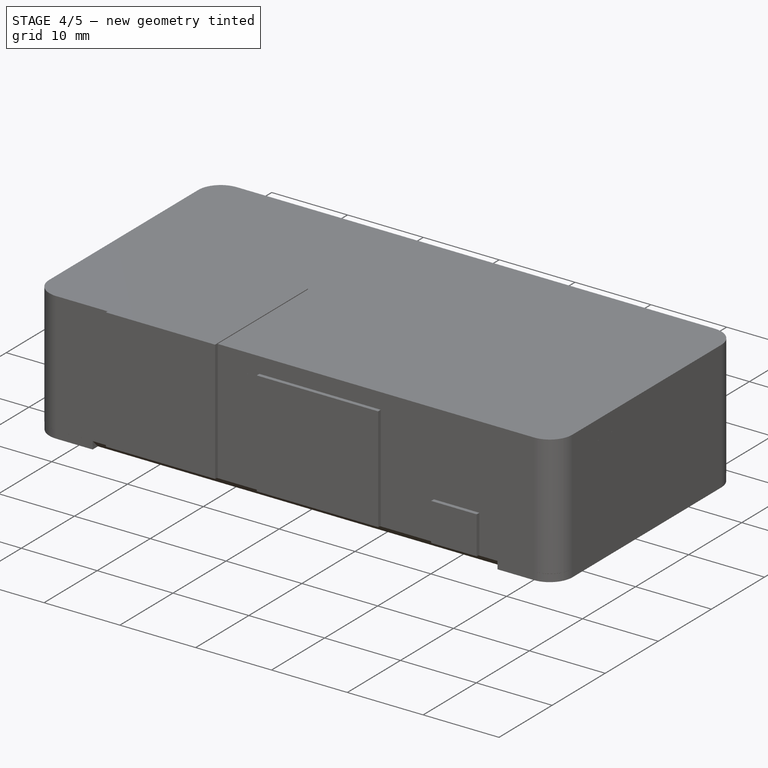
[diagram: stage 4 of 5 — iso view after this stage's code; geometry added in this stage tinted green]
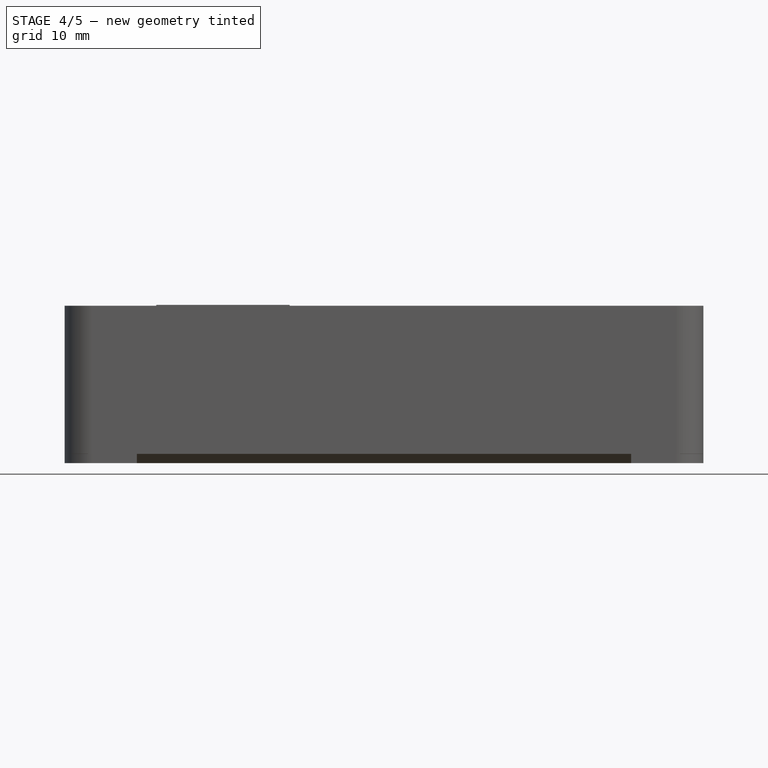
[diagram: stage 4 of 5 — front view after this stage's code; geometry added in this stage tinted green]
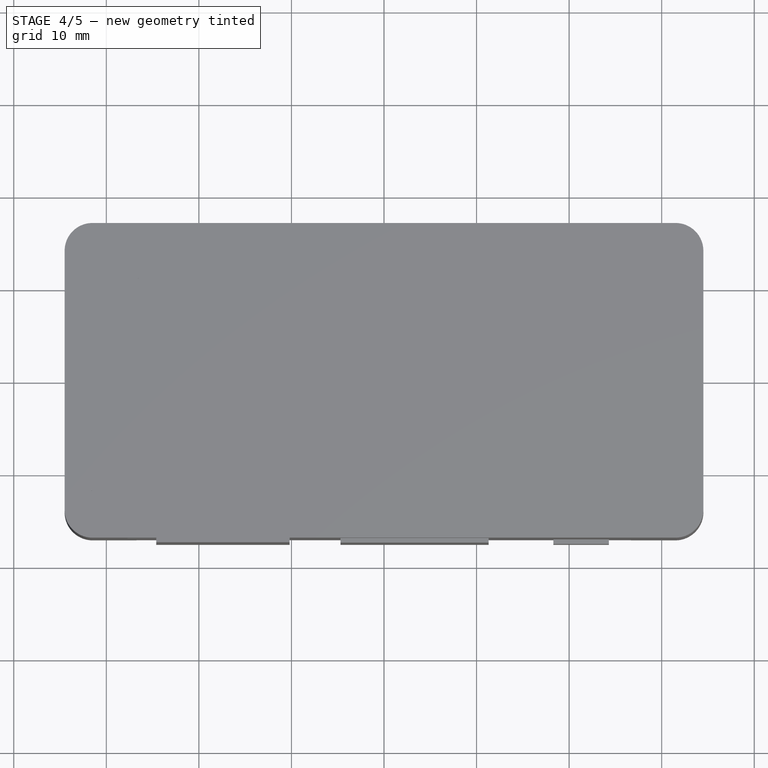
[diagram: stage 4 of 5 — top view after this stage's code; geometry added in this stage tinted green]
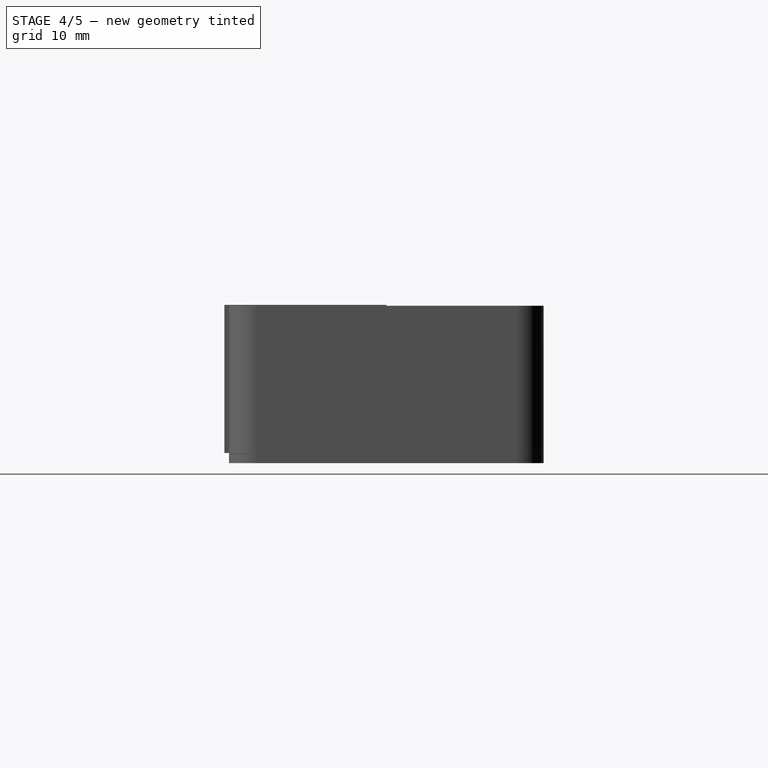
[diagram: stage 4 of 5 — right view after this stage's code; geometry added in this stage tinted green]
FEATURE [PartDesign::Thickness] Thickness
  Base = -> Pad004 [Face14]
  BaseFeature = -> Pad004
  Intersection = false
  Join = 1
  Mode = 0
  Reversed = true
  SupportTransform = false
  Suppressed = false
  Value = 1
FEATURE [Sketcher::SketchObject] Sketch008
  ArcFitTolerance = 1e-06
  AttachmentSupport = -> [XY_Plane001]
  FullyConstrained = false
  MakeInternals = false
  MapMode = 5
  expr: Constraints[20] = 30 / 2
  expr: Constraints[21] = 65 / 2
  sketch-geometry (44):
    g0: LineSegment [constr] StartX=0 StartY=15 StartZ=0 EndX=-31.5 EndY=15 EndZ=0
    g1: LineSegment [constr] StartX=-32.5 StartY=14 StartZ=0 EndX=-32.5 EndY=0 EndZ=0
    g2: ArcOfCircle [constr] CenterX=-31.5 CenterY=14 CenterZ=0 NormalX=0 NormalY=0 NormalZ=1 AngleXU=0 Radius=1 StartAngle=1.5708 EndAngle=3.14159
    g3: GeomPoint [constr] X=-32.5 Y=15 Z=0
    g4: LineSegment [constr] StartX=0 StartY=17 StartZ=0 EndX=-31.5 EndY=17 EndZ=0
    g5: LineSegment [constr] StartX=-34.5 StartY=14 StartZ=0 EndX=-34.5 EndY=0 EndZ=0
    g6: ArcOfCircle [constr] CenterX=-31.5 CenterY=14 CenterZ=0 NormalX=0 NormalY=0 NormalZ=1 AngleXU=0 Radius=3 StartAngle=1.5708 EndAngle=3.14159
    g7: GeomPoint [constr] X=-34.5 Y=17 Z=0
    g8: Circle CenterX=-29 CenterY=11.5 CenterZ=0 NormalX=0 NormalY=0 NormalZ=1 AngleXU=0 Radius=1.4
    g9: LineSegment [constr] StartX=-29 StartY=10.1 StartZ=0 EndX=-29 EndY=0 EndZ=0
    g10: LineSegment [constr] StartX=-30.4 StartY=11.5 StartZ=0 EndX=-32.5 EndY=11.5 EndZ=0
    g11: LineSegment [constr] StartX=0 StartY=15 StartZ=0 EndX=31.5 EndY=15 EndZ=0
    g12: LineSegment [constr] StartX=32.5 StartY=14 StartZ=0 EndX=32.5 EndY=0 EndZ=0
    g13: ArcOfCircle [constr] CenterX=31.5 CenterY=14 CenterZ=0 NormalX=0 NormalY=0 NormalZ=1 AngleXU=0 Radius=1 StartAngle=0 EndAngle=1.5708
    g14: GeomPoint [constr] X=32.5 Y=15 Z=0
    g15: LineSegment [constr] StartX=0 StartY=17 StartZ=0 EndX=31.5 EndY=17 EndZ=0
    g16: LineSegment [constr] StartX=34.5 StartY=14 StartZ=0 EndX=34.5 EndY=0 EndZ=0
    g17: ArcOfCircle [constr] CenterX=31.5 CenterY=14 CenterZ=0 NormalX=0 NormalY=0 NormalZ=1 AngleXU=0 Radius=3 StartAngle=0 EndAngle=1.5708
    g18: GeomPoint [constr] X=34.5 Y=17 Z=0
    g19: Circle CenterX=29 CenterY=11.5 CenterZ=0 NormalX=0 NormalY=0 NormalZ=1 AngleXU=0 Radius=1.4
    g20: LineSegment [constr] StartX=29 StartY=10.1 StartZ=0 EndX=29 EndY=0 EndZ=0
    g21: LineSegment [constr] StartX=30.4 StartY=11.5 StartZ=0 EndX=32.5 EndY=11.5 EndZ=0
    g22: LineSegment [constr] StartX=0 StartY=-15 StartZ=0 EndX=-31.5 EndY=-15 EndZ=0
    g23: LineSegment [constr] StartX=-32.5 StartY=-14 StartZ=0 EndX=-32.5 EndY=0 EndZ=0
    g24: ArcOfCircle [constr] CenterX=-31.5 CenterY=-14 CenterZ=0 NormalX=0 NormalY=0 NormalZ=1 AngleXU=0 Radius=1 StartAngle=3.14159 EndAngle=4.71239
    g25: GeomPoint [constr] X=-32.5 Y=-15 Z=0
    g26: LineSegment [constr] StartX=0 StartY=-17 StartZ=0 EndX=-31.5 EndY=-17 EndZ=0
    g27: LineSegment [constr] StartX=-34.5 StartY=-14 StartZ=0 EndX=-34.5 EndY=0 EndZ=0
    g28: ArcOfCircle [constr] CenterX=-31.5 CenterY=-14 CenterZ=0 NormalX=0 NormalY=0 NormalZ=1 AngleXU=0 Radius=3 StartAngle=3.14159 EndAngle=4.71239
    g29: GeomPoint [constr] X=-34.5 Y=-17 Z=0
    g30: Circle CenterX=-29.1 CenterY=-11.5 CenterZ=0 NormalX=0 NormalY=0 NormalZ=1 AngleXU=0 Radius=1.4
    g31: LineSegment [constr] StartX=-29 StartY=-10.1036 StartZ=0 EndX=-29 EndY=0 EndZ=0
    g32: LineSegment [constr] StartX=-30.5 StartY=-11.5 StartZ=0 EndX=-32.5 EndY=-11.5 EndZ=0
    g33: LineSegment [constr] StartX=0 StartY=-15 StartZ=0 EndX=31.5 EndY=-15 EndZ=0
    g34: LineSegment [constr] StartX=32.5 StartY=-14 StartZ=0 EndX=32.5 EndY=0 EndZ=0
    g35: ArcOfCircle [constr] CenterX=31.5 CenterY=-14 CenterZ=0 NormalX=0 NormalY=0 NormalZ=1 AngleXU=0 Radius=1 StartAngle=4.71239 EndAngle=6.28319
    g36: GeomPoint [constr] X=32.5 Y=-15 Z=0
    g37: LineSegment [constr] StartX=0 StartY=-17 StartZ=0 EndX=31.5 EndY=-17 EndZ=0
    g38: LineSegment [constr] StartX=34.5 StartY=-14 StartZ=0 EndX=34.5 EndY=0 EndZ=0
    g39: ArcOfCircle [constr] CenterX=31.5 CenterY=-14 CenterZ=0 NormalX=0 NormalY=0 NormalZ=1 AngleXU=0 Radius=3 StartAngle=4.71239 EndAngle=6.28319
    g40: GeomPoint [constr] X=34.5 Y=-17 Z=0
    g41: Circle CenterX=29 CenterY=-11.5 CenterZ=0 NormalX=0 NormalY=0 NormalZ=1 AngleXU=0 Radius=1.4
    g42: LineSegment [constr] StartX=29 StartY=-10.1 StartZ=0 EndX=29 EndY=0 EndZ=0
    g43: LineSegment [constr] StartX=30.4 StartY=-11.5 StartZ=0 EndX=32.5 EndY=-11.5 EndZ=0
  constraints (91):
    c: PointOnObject(g0,g-2)
    c: Horizontal(g0)
    c: PointOnObject(g1,g-1)
    c: Vertical(g1)
    c: PointOnObject(g3,g0)
    c: PointOnObject(g3,g1)
    c: Tangent(g0,g2) = -1.5708
    c: Tangent(g1,g2) = -1.5708
    c: Radius(g2) = 1
    c: PointOnObject(g4,g-2)
    c: Horizontal(g4)
    c: PointOnObject(g5,g-1)
    c: Vertical(g5)
    c: PointOnObject(g7,g4)
    c: PointOnObject(g7,g5)
    c: Tangent(g4,g6) = -1.5708
    c: Tangent(g5,g6) = -1.5708
    c: Radius(g6) = 3
    c: DistanceY(g0,g4) = 2
    c: DistanceX(g5,g1) = 2
    c: DistanceY(g1,g0) = 15
    c: DistanceX(g1,g0) = 32.5
    c: DistanceY(g8,g0) = 3.5
    c: DistanceX(g1,g8) = 3.5
    c: Radius(g8) = 1.4
    c: PointOnObject(g9,g-1)
    c: Vertical(g9)
    c: PointOnObject(g9,g8)
    c: PointOnObject(g10,g1)
    c: Horizontal(g10)
    c: PointOnObject(g10,g8)
    c: Horizontal(g11)
    c: Vertical(g12)
    c: PointOnObject(g14,g11)
    c: PointOnObject(g14,g12)
    c: Tangent(g11,g13) = 1.5708
    c: Tangent(g12,g13) = 1.5708
    c: Radius(g13) = 1
    c: Horizontal(g15)
    c: Vertical(g16)
    c: PointOnObject(g18,g15)
    c: PointOnObject(g18,g16)
    c: Tangent(g15,g17) = 1.5708
    c: Tangent(g16,g17) = 1.5708
    c: Radius(g17) = 3
    c: Radius(g19) = 1.4
    c: Vertical(g20)
    c: PointOnObject(g20,g19)
    c: PointOnObject(g21,g12)
    c: Horizontal(g21)
    c: PointOnObject(g21,g19)
    c: Horizontal(g22)
    c: Vertical(g23)
    c: PointOnObject(g25,g22)
    c: PointOnObject(g25,g23)
    c: Tangent(g22,g24) = 1.5708
    c: Tangent(g23,g24) = 1.5708
    c: Radius(g24) = 1
    c: Horizontal(g26)
    c: Vertical(g27)
    c: PointOnObject(g29,g26)
    c: PointOnObject(g29,g27)
    c: Tangent(g26,g28) = 1.5708
    c: Tangent(g27,g28) = 1.5708
    c: Radius(g28) = 3
    c: Radius(g30) = 1.4
    c: Vertical(g31)
    c: PointOnObject(g31,g30)
    c: PointOnObject(g32,g23)
    c: Horizontal(g32)
    c: PointOnObject(g32,g30)
    c: Horizontal(g33)
    c: Vertical(g34)
    c: PointOnObject(g36,g33)
    c: PointOnObject(g36,g34)
    c: Tangent(g33,g35) = -1.5708
    c: Tangent(g34,g35) = -1.5708
    c: Radius(g35) = 1
    c: Horizontal(g37)
    c: Vertical(g38)
    c: PointOnObject(g40,g37)
    c: PointOnObject(g40,g38)
    c: Tangent(g37,g39) = -1.5708
    c: Tangent(g38,g39) = -1.5708
    c: Radius(g39) = 3
    c: Radius(g41) = 1.4
    c: Vertical(g42)
    c: PointOnObject(g42,g41)
    c: PointOnObject(g43,g34)
    c: Horizontal(g43)
    c: PointOnObject(g43,g41)
FEATURE [PartDesign::Pad] Pad005
  BaseFeature = -> Thickness
  Direction = (0,0,1)
  Length = 5
  Length2 = 10
  Profile = -> Sketch008
  ReferenceAxis = -> Sketch008 [N_Axis]
  Suppressed = false
  Type = 0
FEATURE [Sketcher::SketchObject] Sketch009
  ArcFitTolerance = 1e-06
  AttachmentOffset = pos=(0,0,-10.5) rot=(0,0,1;0rad)
  AttachmentSupport = -> [Pad005]
  FullyConstrained = false
  MakeInternals = false
  MapMode = 5
  Placement = pos=(0,0,4) rot=(0,0,1;0rad)
  sketch-geometry (14):
    g0: LineSegment StartX=-31.8142 StartY=8.98515 StartZ=0 EndX=-38.6659 EndY=8.98515 EndZ=0
    g1: LineSegment StartX=-38.6659 StartY=8.98515 StartZ=0 EndX=-38.6659 EndY=-23.7958 EndZ=0
    g2: LineSegment StartX=-38.6659 StartY=-23.7958 StartZ=0 EndX=27.3143 EndY=-23.7958 EndZ=0
    g3: LineSegment StartX=-31.8142 StartY=-5.51485 StartZ=0 EndX=-31.8142 EndY=8.98515 EndZ=0
    g4: LineSegment StartX=-31.8142 StartY=-5.51485 StartZ=0 EndX=-36.3633 EndY=-5.51485 EndZ=0
    g5: LineSegment StartX=-36.3633 StartY=-5.51485 StartZ=0 EndX=-36.3633 EndY=-18.0379 EndZ=0
    g6: LineSegment StartX=-36.3633 StartY=-18.0379 StartZ=0 EndX=-26.0857 EndY=-18.0379 EndZ=0
    g7: LineSegment StartX=3.3143 StartY=-18.0379 StartZ=0 EndX=-14.0857 EndY=-18.0379 EndZ=0
    g8: LineSegment StartX=-14.0857 StartY=-18.0379 StartZ=0 EndX=-14.0857 EndY=-14.3915 EndZ=0
    g9: LineSegment StartX=-26.0857 StartY=-14.3915 StartZ=0 EndX=-26.0857 EndY=-18.0379 EndZ=0
    g10: LineSegment StartX=27.3143 StartY=-14.3915 StartZ=0 EndX=3.3143 EndY=-14.3915 EndZ=0
    g11: LineSegment StartX=-26.0857 StartY=-14.3915 StartZ=0 EndX=-14.0857 EndY=-14.3915 EndZ=0
    g12: LineSegment StartX=3.3143 StartY=-18.0379 StartZ=0 EndX=3.3143 EndY=-14.3915 EndZ=0
    g13: LineSegment StartX=27.3143 StartY=-14.3915 StartZ=0 EndX=27.3143 EndY=-23.7958 EndZ=0
  constraints (24):
    c: Horizontal(g0)
    c: Coincident(g0,g1)
    c: Vertical(g1)
    c: Coincident(g1,g2)
    c: Horizontal(g2)
    c: Coincident(g3,g0)
    c: Vertical(g3)
    c: Vertical(g5)
    c: Coincident(g3,g4)
    c: Coincident(g4,g5)
    c: Coincident(g6,g5)
    c: Horizontal(g6)
    c: Vertical(g8)
    c: Coincident(g8,g7)
    c: Coincident(g9,g6)
    c: Coincident(g11,g9)
    c: Coincident(g11,g8)
    c: Horizontal(g11)
    c: Coincident(g12,g7)
    c: Coincident(g12,g10)
    c: Vertical(g12)
    c: Coincident(g13,g10)
    c: Coincident(g13,g2)
    c: Vertical(g13)
FEATURE [Sketcher::SketchObject] Sketch010
  ArcFitTolerance = 1e-06
  AttachmentOffset = pos=(0,0,3) rot=(0,0,1;0rad)
  FullyConstrained = true
  MakeInternals = false
  MapMode = 5
  Placement = pos=(0,0,4) rot=(0,0,1;0rad)
  sketch-geometry (4):
    g0: Circle CenterX=-29 CenterY=11.5 CenterZ=0 NormalX=0 NormalY=0 NormalZ=1 AngleXU=0 Radius=2.75
    g1: Circle CenterX=-29.1 CenterY=-11.5 CenterZ=0 NormalX=0 NormalY=0 NormalZ=1 AngleXU=0 Radius=2.75
    g2: Circle CenterX=29 CenterY=11.5 CenterZ=0 NormalX=0 NormalY=0 NormalZ=1 AngleXU=0 Radius=2.75
    g3: Circle CenterX=29 CenterY=-11.5 CenterZ=0 NormalX=0 NormalY=0 NormalZ=1 AngleXU=0 Radius=2.75
  constraints (8):
    c: Diameter(g0) = 5.5
    c: Coincident(g0,g-3)
    c: Coincident(g1,g-4)
    c: Coincident(g2,g-6)
    c: Coincident(g3,g-5)
    c: Equal(g1,g3)
    c: Equal(g3,g2)
    c: Equal(g2,g0)
FEATURE [PartDesign::Pad] Pad006
  BaseFeature = -> Pad005
  Direction = (0,0,1)
  Length = 3
  Length2 = 10
  Profile = -> Sketch010
  ReferenceAxis = -> Sketch010 [N_Axis]
  Reversed = true
  Suppressed = false
  Type = 0
FEATURE [PartDesign::Pocket] Pocket001
  BaseFeature = -> Pad006
  Direction = (0,0,-1)
  Length = 6
  Length2 = 5
  Profile = -> Sketch009
  ReferenceAxis = -> Sketch009 [N_Axis]
  Reversed = true
  Suppressed = false
  Type = 0
FEATURE [PartDesign::Chamfer] Chamfer
  Angle = 45
  Base = -> Pocket001 [Edge19]
  BaseFeature = -> Pocket001
  ChamferType = 0
  FlipDirection = false
  Size = 1
  Size2 = 1
  SupportTransform = false
  Suppressed = false
  UseAllEdges = false
FEATURE [PartDesign::Chamfer] Chamfer001
  Angle = 45
  Base = -> Chamfer [Edge97]
  BaseFeature = -> Chamfer
  ChamferType = 0
  FlipDirection = false
  Size = 1
  Size2 = 1
  SupportTransform = false
  Suppressed = false
  UseAllEdges = false
FEATURE [Sketcher::SketchObject] Sketch011
  ArcFitTolerance = 1e-06
  AttachmentSupport = -> [Chamfer001]
  ExternalGeometry = -> [Chamfer001]
  FullyConstrained = true
  MakeInternals = false
  MapMode = 5
  Placement = pos=(0,0,0) rot=(1,0,0;3.14159rad)
  sketch-geometry (4):
    g0: Circle CenterX=-29.1 CenterY=11.5 CenterZ=0 NormalX=0 NormalY=0 NormalZ=1 AngleXU=0 Radius=1
    g1: Circle CenterX=29 CenterY=11.5 CenterZ=0 NormalX=0 NormalY=0 NormalZ=1 AngleXU=0 Radius=1
    g2: Circle CenterX=29 CenterY=-11.5 CenterZ=0 NormalX=0 NormalY=0 NormalZ=1 AngleXU=0 Radius=1
    g3: Circle CenterX=-29 CenterY=-11.5 CenterZ=0 NormalX=0 NormalY=0 NormalZ=1 AngleXU=0 Radius=1
  constraints (8):
    c: Diameter(g0) = 2
    c: Coincident(g0,g-3)
    c: Coincident(g1,g-4)
    c: Coincident(g2,g-6)
    c: Coincident(g3,g-5)
    c: Equal(g0,g1)
    c: Equal(g1,g2)
    c: Equal(g2,g3)
FEATURE [PartDesign::Pocket] Pocket002
  BaseFeature = -> Chamfer001
  Direction = (0,0,1)
  Length = 5
  Length2 = 5
  Profile = -> Sketch011
  ReferenceAxis = -> Sketch011 [N_Axis]
  Suppressed = false
  Type = 0
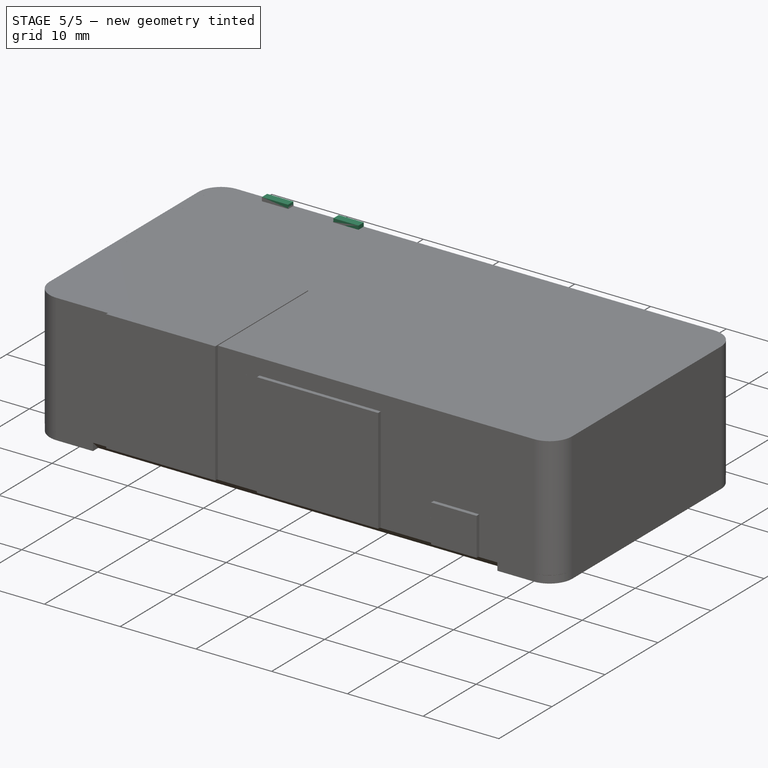
[diagram: stage 5 of 5 — iso view after this stage's code; geometry added in this stage tinted green]
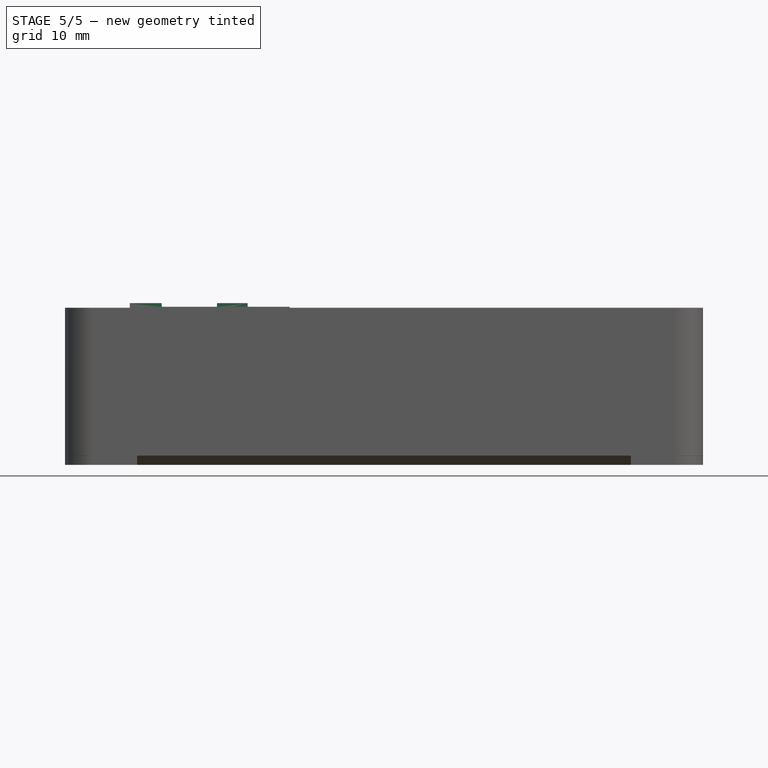
[diagram: stage 5 of 5 — front view after this stage's code; geometry added in this stage tinted green]
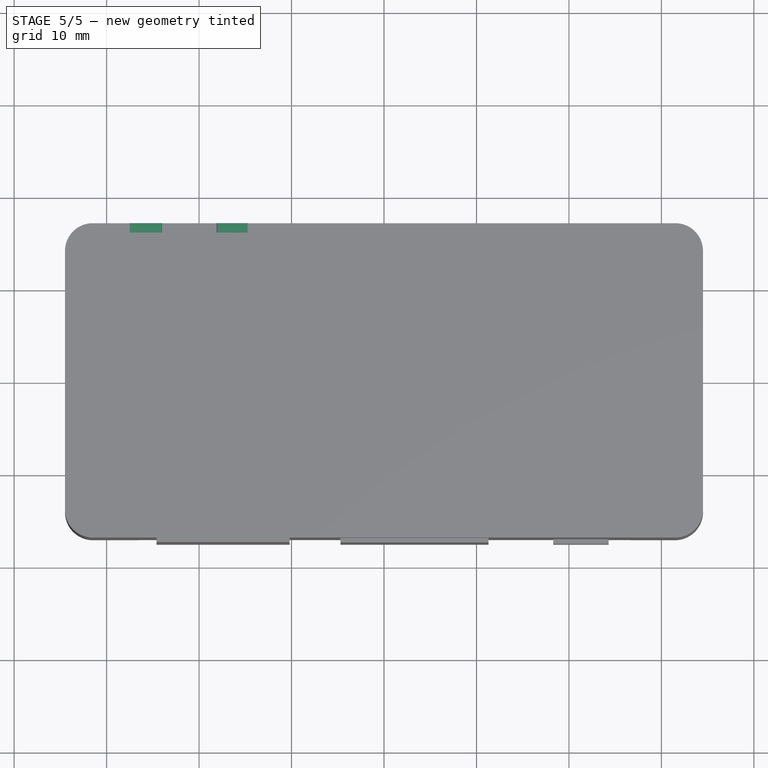
[diagram: stage 5 of 5 — top view after this stage's code; geometry added in this stage tinted green]
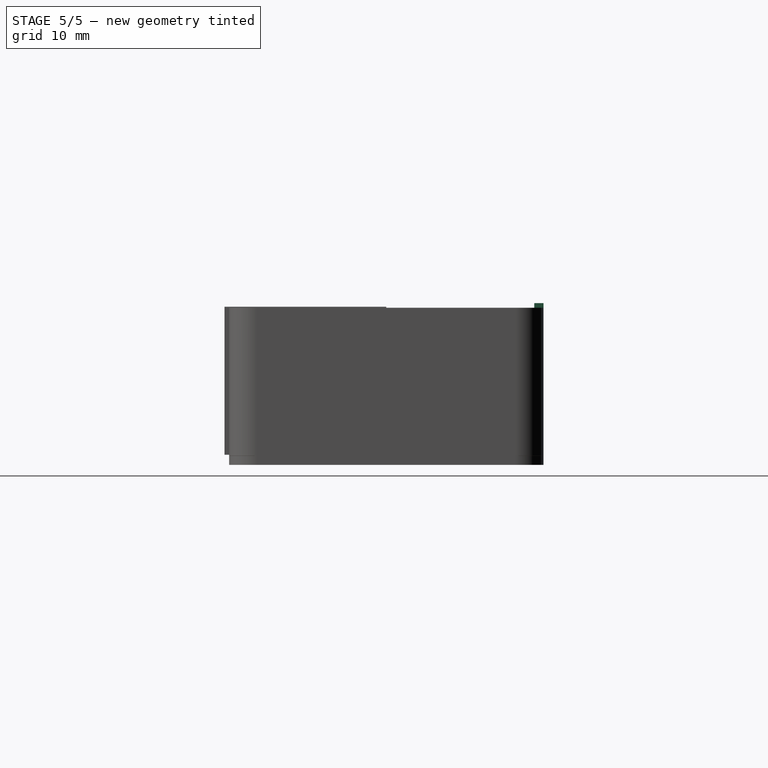
[diagram: stage 5 of 5 — right view after this stage's code; geometry added in this stage tinted green]
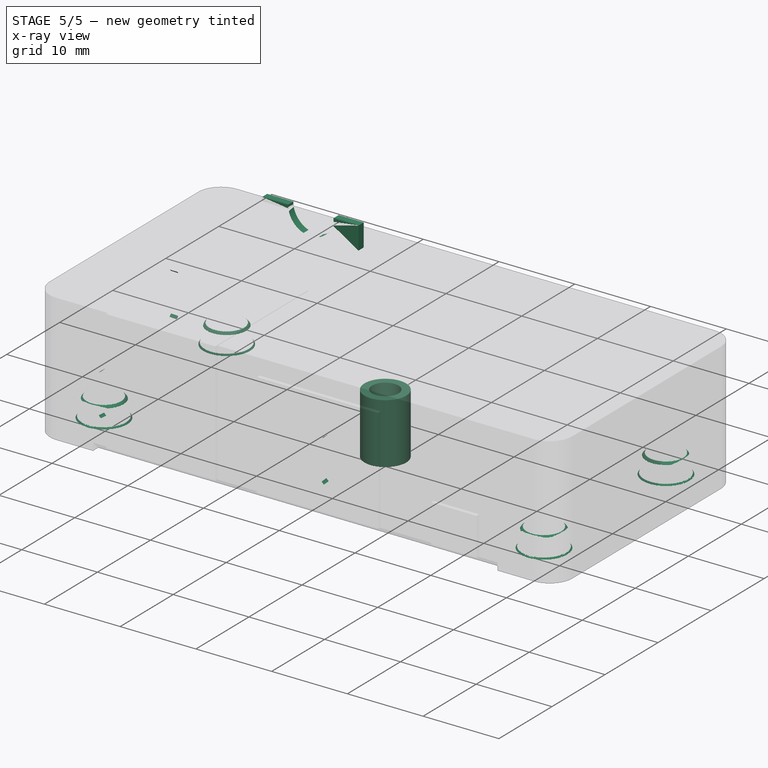
[diagram: stage 5 of 5 — x-ray composite at the iso view; earlier geometry ghosted, this stage's added geometry solid]
FEATURE [Sketcher::SketchObject] Sketch012
  ArcFitTolerance = 1e-06
  AttachmentSupport = -> [Pocket002]
  ExternalGeometry = -> [Pocket002]
  FullyConstrained = true
  MakeInternals = false
  MapMode = 5
  Placement = pos=(0,0,0) rot=(1,0,0;3.14159rad)
  sketch-geometry (4):
    g0: Circle CenterX=-29.1 CenterY=11.5 CenterZ=0 NormalX=0 NormalY=0 NormalZ=1 AngleXU=0 Radius=2
    g1: Circle CenterX=29 CenterY=11.5 CenterZ=0 NormalX=0 NormalY=0 NormalZ=1 AngleXU=0 Radius=2
    g2: Circle CenterX=29 CenterY=-11.5 CenterZ=0 NormalX=0 NormalY=0 NormalZ=1 AngleXU=0 Radius=2
    g3: Circle CenterX=-29 CenterY=-11.5 CenterZ=0 NormalX=0 NormalY=0 NormalZ=1 AngleXU=0 Radius=2
  constraints (8):
    c: Diameter(g0) = 4
    c: Coincident(g0,g-3)
    c: Coincident(g1,g-6)
    c: Coincident(g2,g-5)
    c: Coincident(g3,g-4)
    c: Equal(g3,g2)
    c: Equal(g2,g1)
    c: Equal(g1,g0)
FEATURE [PartDesign::Pocket] Pocket003
  BaseFeature = -> Pocket002
  Direction = (0,0,1)
  Length = 2.5
  Length2 = 5
  Profile = -> Sketch012
  ReferenceAxis = -> Sketch012 [N_Axis]
  Suppressed = false
  Type = 0
FEATURE [PartDesign::Fillet] Fillet
  Base = -> Pocket003 [Edge157,Edge156,Edge162,Edge164,Edge147,Edge146,Edge159,Edge165,Edge163,Edge158,Edge149,Edge148]
  BaseFeature = -> Pocket003
  Radius = 1
  SupportTransform = false
  Suppressed = false
  UseAllEdges = false
FEATURE [PartDesign::Fillet] Fillet001
  Base = -> Fillet [Face86,Face87,Face85,Face84]
  BaseFeature = -> Fillet
  Radius = 1
  SupportTransform = false
  Suppressed = false
  UseAllEdges = false
FEATURE [Sketcher::SketchObject] Sketch
  ArcFitTolerance = 1e-06
  AttachmentSupport = -> [XY_Plane]
  FullyConstrained = true
  MakeInternals = false
  MapMode = 5
  sketch-geometry (1):
    g0: Circle CenterX=0 CenterY=0 CenterZ=0 NormalX=0 NormalY=0 NormalZ=1 AngleXU=0 Radius=1.75
  constraints (2):
    c: Diameter(g0) = 3.5
    c: Coincident(g0,g-1)
FEATURE [PartDesign::Pad] Pad
  Direction = (0,0,1)
  Length = 8
  Length2 = 10
  Profile = -> Sketch
  ReferenceAxis = -> Sketch [N_Axis]
  Suppressed = false
  Type = 0
FEATURE [PartDesign::Thickness] Thickness001
  Base = -> Pad [Face3]
  BaseFeature = -> Pad
  Intersection = false
  Join = 1
  Mode = 0
  SupportTransform = false
  Suppressed = false
  Value = 1
FEATURE [Sketcher::SketchObject] Sketch013
  ArcFitTolerance = 1e-06
  AttachmentOffset = pos=(0,0,4) rot=(0,0,1;0rad)
  AttachmentSupport = -> [YZ_Plane]
  FullyConstrained = false
  MakeInternals = false
  MapMode = 5
  Placement = pos=(4,0,0) rot=(0.57735,0.57735,0.57735;2.0944rad)
  sketch-geometry (4):
    g0: LineSegment StartX=-5.43726 StartY=-4.95231 StartZ=0 EndX=7.05817 EndY=-4.95231 EndZ=0
    g1: LineSegment StartX=7.05817 StartY=-4.95231 StartZ=0 EndX=7.05817 EndY=0 EndZ=0
    g2: LineSegment StartX=7.05817 StartY=0 StartZ=0 EndX=-5.43726 EndY=0 EndZ=0
    g3: LineSegment StartX=-5.43726 StartY=0 StartZ=0 EndX=-5.43726 EndY=-4.95231 EndZ=0
  constraints (9):
    c: Coincident(g0,g1)
    c: Coincident(g1,g2)
    c: Coincident(g2,g3)
    c: Coincident(g3,g0)
    c: Horizontal(g0)
    c: Horizontal(g2)
    c: Vertical(g1)
    c: Vertical(g3)
    c: PointOnObject(g1,g-1)
FEATURE [PartDesign::Pocket] Pocket
  BaseFeature = -> Thickness001
  Direction = (-1,0,0)
  Length = 5
  Length2 = 5
  Profile = -> Sketch013
  ReferenceAxis = -> Sketch013 [N_Axis]
  Suppressed = false
  Type = 1
FEATURE [PartDesign::Body] Body  label="Spacer"
  AllowCompound = false
  Group = -> [Sketch,Pad,Thickness001,Sketch013,Pocket]
  Origin = -> Origin
  Tip = -> Pocket
FEATURE [Sketcher::SketchObject] Sketch015
  ArcFitTolerance = 1e-06
  AttachmentSupport = -> [Fillet]
  ExternalGeometry = -> [Fillet]
  FullyConstrained = false
  MakeInternals = false
  MapMode = 5
  Placement = pos=(0,0,14.5) rot=(0,0,1;0rad)
  sketch-geometry (4):
    g0: LineSegment StartX=-27.5 StartY=17 StartZ=0 EndX=-27.5 EndY=16 EndZ=0
    g1: LineSegment StartX=-14.75 StartY=17 StartZ=0 EndX=-27.5 EndY=17 EndZ=0
    g2: LineSegment StartX=-14.75 StartY=16 StartZ=0 EndX=-27.5 EndY=16 EndZ=0
    g3: LineSegment StartX=-14.75 StartY=17 StartZ=0 EndX=-14.75 EndY=16 EndZ=0
  constraints (7):
    c: Coincident(g1,g0)
    c: Horizontal(g1)
    c: Coincident(g2,g0)
    c: Horizontal(g2)
    c: Vertical(g3)
    c: Coincident(g3,g1)
    c: Coincident(g2,g3)
FEATURE [PartDesign::Pad] Pad007
  BaseFeature = -> Fillet001
  Direction = (0,0,1)
  Length = 6
  Length2 = 10
  Profile = -> Sketch015
  ReferenceAxis = -> Sketch015 [N_Axis]
  Suppressed = false
  Type = 0
FEATURE [Sketcher::SketchObject] Sketch016
  ArcFitTolerance = 1e-06
  FullyConstrained = false
  MakeInternals = false
  MapMode = 5
  Placement = pos=(0,17,0) rot=(0,0.707107,0.707107;3.14159rad)
  sketch-geometry (7):
    g0: ArcOfCircle CenterX=21.0521 CenterY=17.5 CenterZ=0 NormalX=0 NormalY=0 NormalZ=1 AngleXU=0 Radius=2.99793 StartAngle=3.14159 EndAngle=6.28319
    g1: LineSegment [constr] StartX=18.0541 StartY=17.5 StartZ=0 EndX=24.05 EndY=17.5 EndZ=0
    g2: LineSegment StartX=18.0541 StartY=17.5 StartZ=0 EndX=12.7372 EndY=17.5 EndZ=0
    g3: LineSegment StartX=12.7372 StartY=17.5 StartZ=0 EndX=12.7372 EndY=22.1617 EndZ=0
    g4: LineSegment StartX=12.7372 StartY=22.1617 StartZ=0 EndX=30.4559 EndY=22.1617 EndZ=0
    g5: LineSegment StartX=30.4559 StartY=22.1617 StartZ=0 EndX=30.4559 EndY=17.5 EndZ=0
    g6: LineSegment StartX=24.05 StartY=17.5 StartZ=0 EndX=30.4559 EndY=17.5 EndZ=0
  constraints (14):
    c: Coincident(g1,g0)
    c: Coincident(g1,g0)
    c: Horizontal(g1)
    c: Horizontal(g2)
    c: Coincident(g2,g0)
    c: Coincident(g2,g3)
    c: Vertical(g3)
    c: Coincident(g3,g4)
    c: Horizontal(g4)
    c: Coincident(g4,g5)
    c: Vertical(g5)
    c: Coincident(g6,g0)
    c: Coincident(g6,g5)
    c: Horizontal(g6)
FEATURE [PartDesign::Pocket] Pocket004
  BaseFeature = -> Pad007
  Direction = (0,-1,2e-16)
  Length = 5
  Length2 = 5
  Profile = -> Sketch016
  ReferenceAxis = -> Sketch016 [N_Axis]
  Suppressed = false
  Type = 0
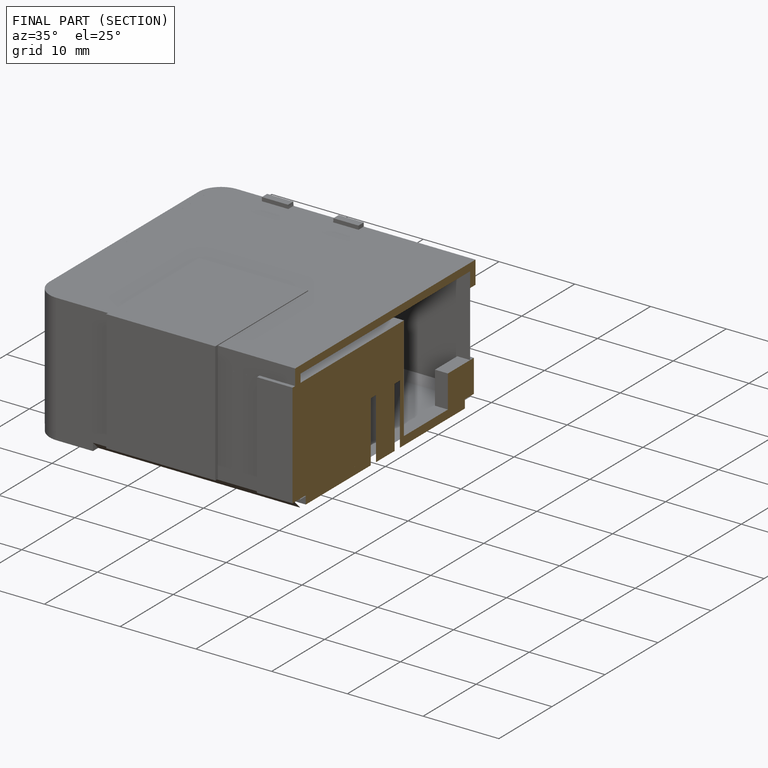
[diagram: finished part — half-section view (interior)]
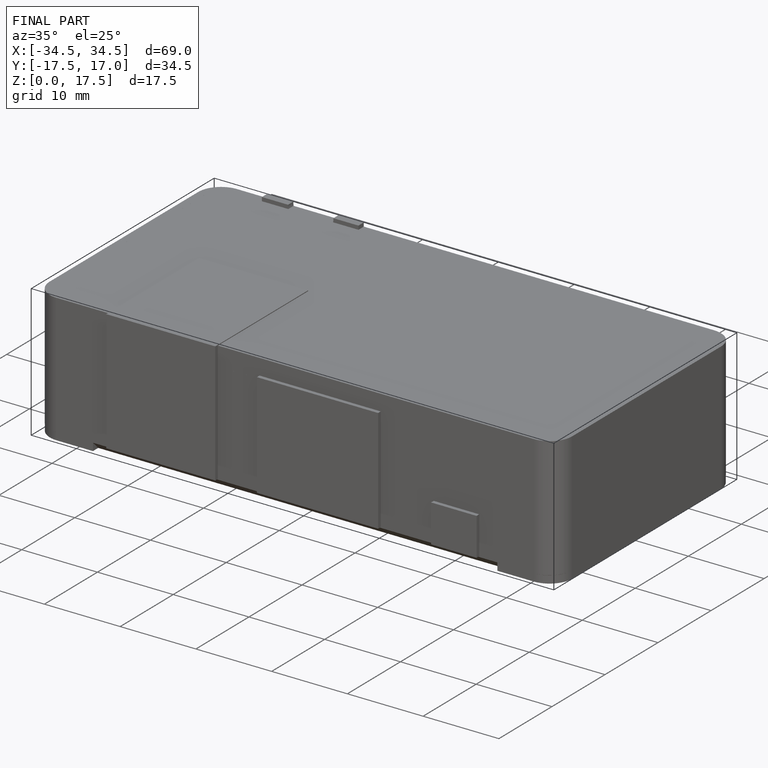
[diagram: finished part — iso view with bounding-box wireframe]
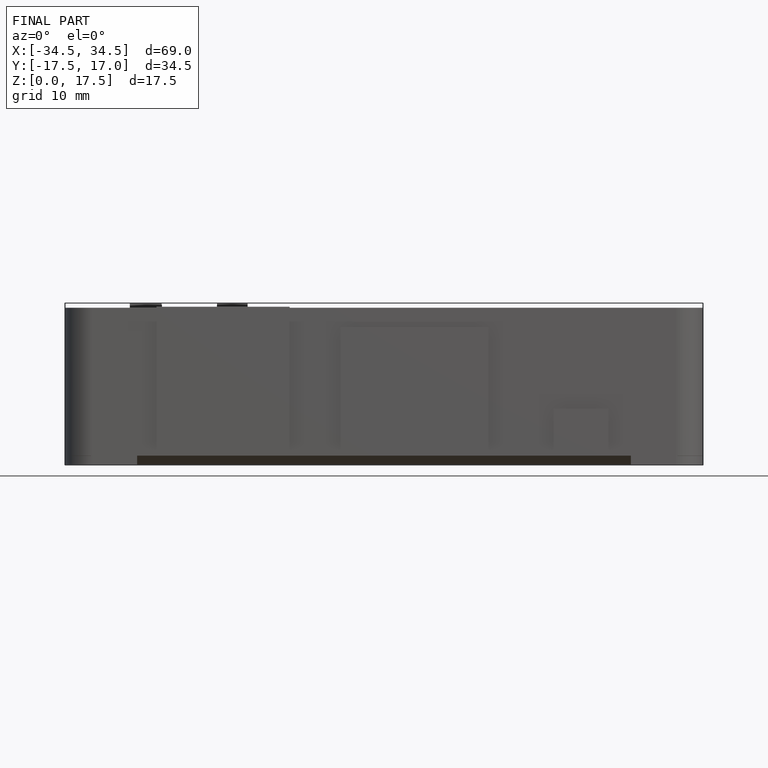
[diagram: finished part — front view with bounding-box wireframe]
